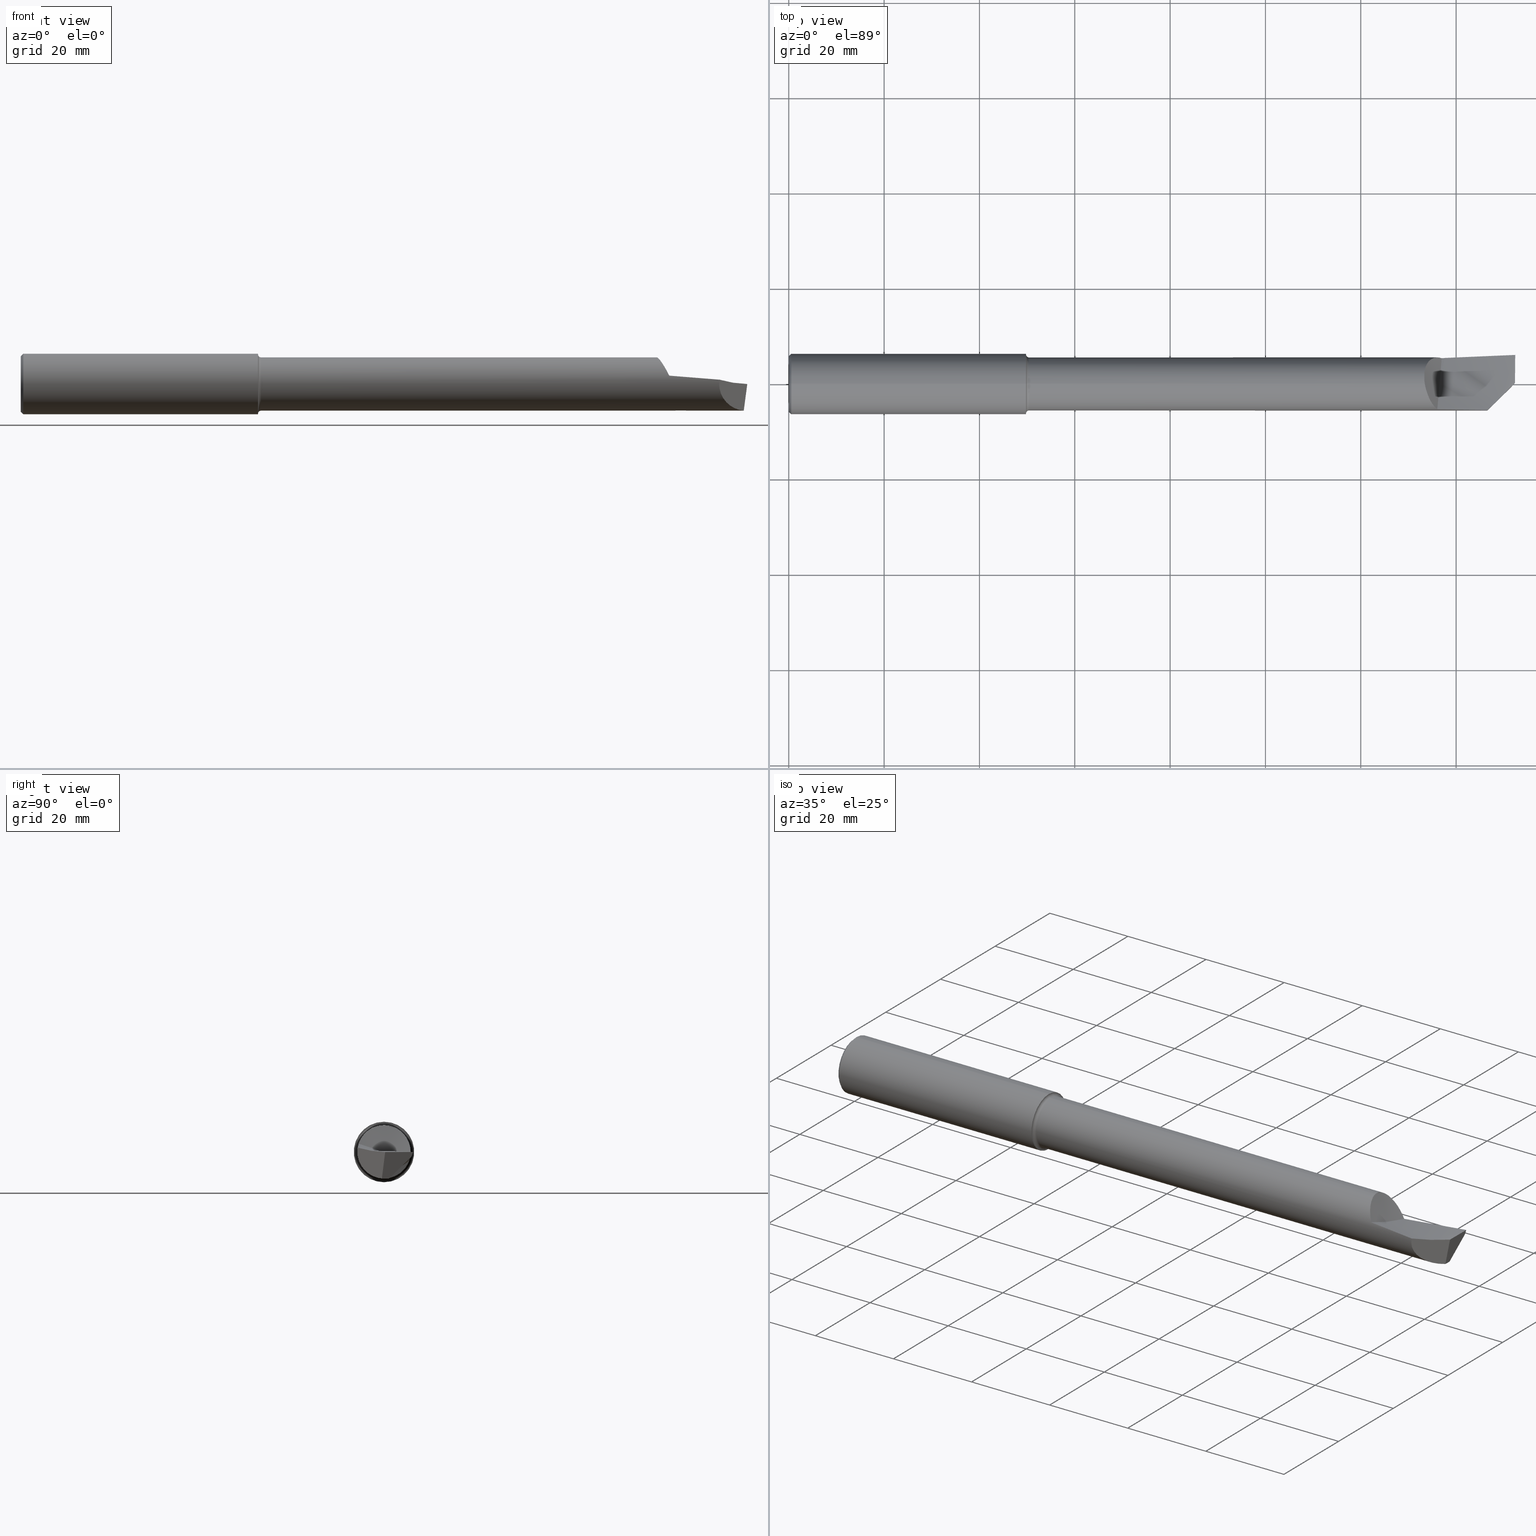
[diagram: canonical four-view strip — front | top / right | iso, engineering-drawing reading convention]
A machine part, canonical four-view strip (front | top / right | iso — engineering-drawing reading convention). The complete STEP part file that produces these views, byte-faithful:
ISO-10303-21;
HEADER;
FILE_DESCRIPTION (( 'STEP AP203' ),
    '1' );
FILE_NAME ('216426-HB4804000.STEP',
    '2024-08-09T22:56:50',
    ( '' ),
    ( '' ),
    'SwSTEP 2.0',
    'SolidWorks 2024',
    '' );
FILE_SCHEMA (( 'CONFIG_CONTROL_DESIGN' ));
ENDSEC;

DATA;
#1 = EDGE_LOOP ( 'NONE', ( #563, #59, #292, #338, #590, #301, #452, #726, #315, #474 ) ) ;
#2 = CARTESIAN_POINT ( 'NONE',  ( 5.377263106783646940, 0.2194462568404662584, -0.02799947325392485031 ) ) ;
#3 = DIRECTION ( 'NONE',  ( 0.000000000000000000, -0.5117430001143385976, -0.8591385812742762251 ) ) ;
#4 = EDGE_CURVE ( 'NONE', #483, #6, #501, .T. ) ;
#5 = VECTOR ( 'NONE', #611, 39.37007874015748143 ) ;
#6 = VERTEX_POINT ( 'NONE', #314 ) ;
#7 = CC_DESIGN_APPROVAL ( #291, ( #535 ) ) ;
#8 = CARTESIAN_POINT ( 'NONE',  ( 5.336129437027316236, 0.2172026737800336060, 0.03511665452093235690 ) ) ;
#9 = CC_DESIGN_DATE_AND_TIME_ASSIGNMENT ( #394, #100, ( #247 ) ) ;
#10 = CARTESIAN_POINT ( 'NONE',  ( 5.771270714435558169, -0.2170814383730695907, 0.03571623039850650716 ) ) ;
#11 = DIRECTION ( 'NONE',  ( -1.000000000000000000, -0.000000000000000000, -0.000000000000000000 ) ) ;
#12 = DIRECTION ( 'NONE',  ( -1.000000000000000000, -0.000000000000000000, -0.000000000000000000 ) ) ;
#13 = ADVANCED_FACE ( 'NONE', ( #553 ), #720, .T. ) ;
#14 = CARTESIAN_POINT ( 'NONE',  ( 0.02000000000000000042, 0.000000000000000000, 0.000000000000000000 ) ) ;
#15 = B_SPLINE_CURVE_WITH_KNOTS ( 'NONE', 3,
 ( #82, #158, #437, #322 ),
 .UNSPECIFIED., .F., .F.,
 ( 4, 4 ),
 ( 0.000000000000000000, 1.000000000000000000 ),
 .UNSPECIFIED. ) ;
#16 = CARTESIAN_POINT ( 'NONE',  ( 1.959525038226270555, 3.000384657911014877E-17, -0.2449999999999999956 ) ) ;
#17 = CARTESIAN_POINT ( 'NONE',  ( 0.000000000000000000, 0.000000000000000000, 0.2498499999999999888 ) ) ;
#18 = AXIS2_PLACEMENT_3D ( 'NONE', #124, #78, #194 ) ;
#19 = ORGANIZATION ( 'UNSPECIFIED', 'UNSPECIFIED', '' ) ;
#20 = CC_DESIGN_PERSON_AND_ORGANIZATION_ASSIGNMENT ( #695, #48, ( #56 ) ) ;
#21 = CARTESIAN_POINT ( 'NONE',  ( 5.250000000000000888, 0.000000000000000000, 0.000000000000000000 ) ) ;
#22 = CARTESIAN_POINT ( 'NONE',  ( 5.415641684470012152, 0.2152245864486061477, -0.05019323217790257891 ) ) ;
#23 =( BOUNDED_CURVE ( )  B_SPLINE_CURVE ( 2, ( #25, #81, #440 ),
 .UNSPECIFIED., .F., .F. ) 
 B_SPLINE_CURVE_WITH_KNOTS ( ( 3, 3 ),
 ( 0.5266614230579070854, 0.5400257304258038182 ),
 .UNSPECIFIED. ) 
 CURVE ( )  GEOMETRIC_REPRESENTATION_ITEM ( )  RATIONAL_B_SPLINE_CURVE ( ( 0.9955652346528230945, 0.9953917806560829140, 0.9952287059344252507 ) ) 
 REPRESENTATION_ITEM ( '' )  );
#24 = APPLICATION_CONTEXT ( 'configuration controlled 3d designs of mechanical parts and assemblies' ) ;
#25 = CARTESIAN_POINT ( 'NONE',  ( 5.392944745247168825, 0.2140968924730454748, -0.05062134562993383935 ) ) ;
#26 = FACE_OUTER_BOUND ( 'NONE', #127, .T. ) ;
#27 = CARTESIAN_POINT ( 'NONE',  ( 5.970822649411938521, -0.01752950339668959273, -0.2193005164395778750 ) ) ;
#28 = EDGE_CURVE ( 'NONE', #471, #6, #89, .T. ) ;
#29 = TOROIDAL_SURFACE ( 'NONE', #40, 0.2449999999999999956, 0.02499999999999993894 ) ;
#30 = CARTESIAN_POINT ( 'NONE',  ( 5.272414265991219651, -0.07762841386096502871, 0.2061942163186600840 ) ) ;
#31 = VERTEX_POINT ( 'NONE', #497 ) ;
#32 = DIRECTION ( 'NONE',  ( 0.000000000000000000, 0.000000000000000000, -1.000000000000000000 ) ) ;
#33 = PERSON_AND_ORGANIZATION ( #429, #19 ) ;
#34 = ORIENTED_EDGE ( 'NONE', *, *, #274, .T. ) ;
#35 = EDGE_CURVE ( 'NONE', #229, #364, #604, .T. ) ;
#36 = CARTESIAN_POINT ( 'NONE',  ( 5.358974358974360364, 0.1342370902800414656, -0.04940682683429966499 ) ) ;
#37 = CARTESIAN_POINT ( 'NONE',  ( 5.410000000000000142, 0.1970817183423179408, -0.08059262188691969364 ) ) ;
#38 = APPROVAL_ROLE ( '' ) ;
#39 = EDGE_LOOP ( 'NONE', ( #707, #649 ) ) ;
#40 = AXIS2_PLACEMENT_3D ( 'NONE', #641, #192, #652 ) ;
#41 = CARTESIAN_POINT ( 'NONE',  ( 5.410000000000000142, 0.2558415763869938964, -0.006761738212205330341 ) ) ;
#42 = CARTESIAN_POINT ( 'NONE',  ( 5.382444373406586990, 0.08525274857312417631, -0.02813121554086442724 ) ) ;
#43 = LOCAL_TIME ( 15, 56, 50.00000000000000000, #578 ) ;
#44 = MECHANICAL_CONTEXT ( 'NONE', #24, 'mechanical' ) ;
#45 = VERTEX_POINT ( 'NONE', #659 ) ;
#46 = DIRECTION ( 'NONE',  ( 1.000000000000000000, 0.000000000000000000, 0.000000000000000000 ) ) ;
#47 = CARTESIAN_POINT ( 'NONE',  ( 5.252747084439405967, 0.001941860339958889929, 0.2199919648580568321 ) ) ;
#48 = PERSON_AND_ORGANIZATION_ROLE ( 'creator' ) ;
#49 = ORIENTED_EDGE ( 'NONE', *, *, #624, .T. ) ;
#50 = CARTESIAN_POINT ( 'NONE',  ( 5.415657971079504307, 0.2155047129925782845, -0.04896678893848467606 ) ) ;
#51 = DIRECTION ( 'NONE',  ( -1.000000000000000000, 0.000000000000000000, 0.000000000000000000 ) ) ;
#52 = CARTESIAN_POINT ( 'NONE',  ( 5.252899803584523575, 0.0009714720314203271947, 0.2199983901436112776 ) ) ;
#53 = ADVANCED_FACE ( 'NONE', ( #26 ), #494, .F. ) ;
#54 = ORIENTED_EDGE ( 'NONE', *, *, #35, .T. ) ;
#55 = CARTESIAN_POINT ( 'NONE',  ( 5.263299120774839857, 0.1481083136068665207, 0.1627128149071685459 ) ) ;
#56 = PRODUCT_DEFINITION_FORMATION_WITH_SPECIFIED_SOURCE ( 'ANY', '', #62, .NOT_KNOWN. ) ;
#57 = EDGE_LOOP ( 'NONE', ( #168, #155 ) ) ;
#58 = CARTESIAN_POINT ( 'NONE',  ( 5.998256711176780165, 0.08645143747528813427, -0.003266647090703651314 ) ) ;
#59 = ORIENTED_EDGE ( 'NONE', *, *, #449, .T. ) ;
#60 = ADVANCED_FACE ( 'NONE', ( #381 ), #186, .T. ) ;
#61 = DIRECTION ( 'NONE',  ( 0.000000000000000000, 0.000000000000000000, 1.000000000000000000 ) ) ;
#62 = PRODUCT ( '216426-HB4804000', '216426-HB4804000', '', ( #44 ) ) ;
#63 = LINE ( 'NONE', #363, #92 ) ;
#64 = APPLICATION_CONTEXT ( 'configuration controlled 3d designs of mechanical parts and assemblies' ) ;
#65 = ORIENTED_EDGE ( 'NONE', *, *, #708, .F. ) ;
#66 = CARTESIAN_POINT ( 'NONE',  ( 5.361872680313166661, 0.2211791025387655485, -0.004520542396876575664 ) ) ;
#67 = SHAPE_DEFINITION_REPRESENTATION ( #110, #461 ) ;
#68 = LINE ( 'NONE', #709, #451 ) ;
#69 = VECTOR ( 'NONE', #132, 39.37007874015748143 ) ;
#70 = CARTESIAN_POINT ( 'NONE',  ( 1.959525038226270555, 3.059780027669661931E-17, -0.2498499999999999888 ) ) ;
#71 = APPROVAL_PERSON_ORGANIZATION ( #341, #291, #38 ) ;
#72 = CARTESIAN_POINT ( 'NONE',  ( 5.996294878558304120, 0.2306141419735413256, -0.02948980456723024682 ) ) ;
#73 = CARTESIAN_POINT ( 'NONE',  ( 0.02000000000000000042, 0.000000000000000000, 0.000000000000000000 ) ) ;
#74 = EDGE_CURVE ( 'NONE', #729, #583, #198, .T. ) ;
#75 = VERTEX_POINT ( 'NONE', #601 ) ;
#76 = ORIENTED_EDGE ( 'NONE', *, *, #424, .T. ) ;
#77 = CARTESIAN_POINT ( 'NONE',  ( 5.338186628435208192, 0.2176984924494593521, 0.03190986540131428295 ) ) ;
#78 = DIRECTION ( 'NONE',  ( -1.000000000000000000, -0.000000000000000000, -0.000000000000000000 ) ) ;
#79 = VERTEX_POINT ( 'NONE', #610 ) ;
#80 = ORIENTED_EDGE ( 'NONE', *, *, #522, .F. ) ;
#81 = CARTESIAN_POINT ( 'NONE',  ( 5.401469481609320944, 0.2142601318164513158, -0.04993094446185701585 ) ) ;
#82 = CARTESIAN_POINT ( 'NONE',  ( 5.250000000000000888, 0.02296396303118268881, 0.2187982093206032042 ) ) ;
#83 = CIRCLE ( 'NONE', #490, 0.2498499999999999888 ) ;
#84 = CARTESIAN_POINT ( 'NONE',  ( 5.970889738018302140, 0.000000000000000000, -0.2200000000000000566 ) ) ;
#85 = CARTESIAN_POINT ( 'NONE',  ( 5.412811562919337405, 0.2143837749633565049, -0.05157965173914655366 ) ) ;
#86 = B_SPLINE_CURVE_WITH_KNOTS ( 'NONE', 3,
 ( #469, #746, #52, #47, #576, #294, #618, #472, #686 ),
 .UNSPECIFIED., .F., .F.,
 ( 4, 2, 1, 1, 1, 4 ),
 ( 0.9276727079954699695, 0.9321931637457538944, 0.9367136194960377082, 0.9457545309966040037, 0.9638363539977363725, 1.000000000000000000 ),
 .UNSPECIFIED. ) ;
#87 = EDGE_CURVE ( 'NONE', #193, #629, #15, .T. ) ;
#88 = CARTESIAN_POINT ( 'NONE',  ( 5.310708596583527452, -0.1601832435777479635, 0.1525009408925927790 ) ) ;
#89 = B_SPLINE_CURVE_WITH_KNOTS ( 'NONE', 3,
 ( #261, #255, #377, #371 ),
 .UNSPECIFIED., .F., .F.,
 ( 4, 4 ),
 ( 0.000000000000000000, 1.000000000000000000 ),
 .UNSPECIFIED. ) ;
#90 = EDGE_CURVE ( 'NONE', #106, #190, #595, .T. ) ;
#91 = ORIENTED_EDGE ( 'NONE', *, *, #319, .F. ) ;
#92 = VECTOR ( 'NONE', #328, 39.37007874015748143 ) ;
#93 = CARTESIAN_POINT ( 'NONE',  ( 1.959525038226270555, 0.000000000000000000, 0.000000000000000000 ) ) ;
#94 =( NAMED_UNIT ( * ) PLANE_ANGLE_UNIT ( ) SI_UNIT ( $, .RADIAN. ) );
#95 = B_SPLINE_CURVE_WITH_KNOTS ( 'NONE', 3,
 ( #644, #182, #72, #416, #640, #758, #241, #475, #700, #129 ),
 .UNSPECIFIED., .F., .F.,
 ( 4, 3, 3, 4 ),
 ( 5.795159497631859898E-18, 0.0002380835754663681247, 0.0005952095077555123043, 0.0009523359941415411242 ),
 .UNSPECIFIED. ) ;
#96 = EDGE_CURVE ( 'NONE', #583, #415, #631, .T. ) ;
#97 = ORIENTED_EDGE ( 'NONE', *, *, #577, .T. ) ;
#98 = CARTESIAN_POINT ( 'NONE',  ( 5.771270714435558169, -0.2170814383730695907, 0.03571623039850650716 ) ) ;
#99 = CARTESIAN_POINT ( 'NONE',  ( 0.02000000000000000042, 3.059780027669661931E-17, -0.2498499999999999888 ) ) ;
#100 = DATE_TIME_ROLE ( 'classification_date' ) ;
#101 = ORIENTED_EDGE ( 'NONE', *, *, #544, .F. ) ;
#102 =( BOUNDED_SURFACE ( )  B_SPLINE_SURFACE ( 3, 2, ( 
 ( #216, #113, #524, #166, #735 ),
 ( #580, #355, #676, #398, #569 ),
 ( #288, #350, #36, #516, #745 ),
 ( #468, #157, #741, #178, #413 ) ),
 .UNSPECIFIED., .F., .F., .F. ) 
 B_SPLINE_SURFACE_WITH_KNOTS ( ( 4, 4 ),
 ( 3, 2, 3 ),
 ( 0.000000000000000000, 1.000000000000000000 ),
 ( 0.000000000000000000, 0.5000000000000000000, 1.000000000000000000 ),
 .UNSPECIFIED. ) 
 GEOMETRIC_REPRESENTATION_ITEM ( )  RATIONAL_B_SPLINE_SURFACE ( (
 ( 1.000000000000000000, 0.9927088740980539727, 1.000000000000000000, 0.9927088740980539727, 1.000000000000000000),
 ( 0.9932804858608129672, 0.9860383527824556626, 0.9932804858608129672, 0.9860383527824556626, 0.9932804858608129672),
 ( 0.9932804858608129672, 0.9860383527824556626, 0.9932804858608129672, 0.9860383527824556626, 0.9932804858608129672),
 ( 1.000000000000000000, 0.9927088740980539727, 1.000000000000000000, 0.9927088740980539727, 1.000000000000000000) ) ) 
 REPRESENTATION_ITEM ( '' )  SURFACE ( )  );
#103 = DIRECTION ( 'NONE',  ( 0.000000000000000000, -0.2212080927902476124, -0.9752266299092232638 ) ) ;
#104 = CARTESIAN_POINT ( 'NONE',  ( 5.303082447116823417, 0.2014617548662042956, 0.08839233498445403514 ) ) ;
#105 = DIRECTION ( 'NONE',  ( 0.000000000000000000, 0.000000000000000000, 1.000000000000000000 ) ) ;
#106 = VERTEX_POINT ( 'NONE', #70 ) ;
#107 = CIRCLE ( 'NONE', #208, 0.2498499999999999888 ) ;
#108 = CARTESIAN_POINT ( 'NONE',  ( 5.995554176883933550, 0.2286766137360623508, -0.03538440047008731965 ) ) ;
#109 = CARTESIAN_POINT ( 'NONE',  ( 5.803332917529139046, 0.2199919291101524454, -0.05201733605973000302 ) ) ;
#110 = PRODUCT_DEFINITION_SHAPE ( 'NONE', 'NONE',  #535 ) ;
#111 = EDGE_LOOP ( 'NONE', ( #639, #402, #757, #426, #210, #460, #754, #498, #533 ) ) ;
#112 = CARTESIAN_POINT ( 'NONE',  ( 5.410000000000001918, 0.2144189151190963594, -0.04923950486296321122 ) ) ;
#113 = CARTESIAN_POINT ( 'NONE',  ( 5.679487179487181514, -0.4174835547069452035, 0.09860675650306138795 ) ) ;
#114 = CARTESIAN_POINT ( 'NONE',  ( 6.000000000000000888, -0.005972189368149022695, -0.2698499999999999788 ) ) ;
#115 = ADVANCED_FACE ( 'NONE', ( #312 ), #628, .T. ) ;
#116 = CALENDAR_DATE ( 2024, 9, 8 ) ;
#117 = ORIENTED_EDGE ( 'NONE', *, *, #149, .F. ) ;
#118 = B_SPLINE_SURFACE_WITH_KNOTS ( 'NONE', 1, 3, ( 
 ( #633, #109, #525, #37 ),
 ( #114, #414, #179, #584 ) ),
 .UNSPECIFIED., .F., .F., .F.,
 ( 2, 2 ),
 ( 4, 4 ),
 ( 0.000000000000000000, 1.000000000000000000 ),
 ( 0.000000000000000000, 1.000000000000000000 ),
 .UNSPECIFIED. ) ;
#119 = CARTESIAN_POINT ( 'NONE',  ( 5.720539435095658654, 0.01518366230970715977, -0.2200000000000000566 ) ) ;
#120 = CARTESIAN_POINT ( 'NONE',  ( 5.258515655996601978, 0.1351780063360196460, 0.1737028663086810920 ) ) ;
#121 = ORIENTED_EDGE ( 'NONE', *, *, #692, .F. ) ;
#122 = FACE_OUTER_BOUND ( 'NONE', #273, .T. ) ;
#123 = AXIS2_PLACEMENT_3D ( 'NONE', #594, #476, #473 ) ;
#124 = CARTESIAN_POINT ( 'NONE',  ( 0.000000000000000000, 0.000000000000000000, 0.000000000000000000 ) ) ;
#125 = AXIS2_PLACEMENT_3D ( 'NONE', #554, #336, #32 ) ;
#126 = B_SPLINE_SURFACE_WITH_KNOTS ( 'NONE', 1, 3, ( 
 ( #222, #227, #528, #399 ),
 ( #682, #750, #637, #346 ) ),
 .UNSPECIFIED., .F., .F., .F.,
 ( 2, 2 ),
 ( 4, 4 ),
 ( 0.000000000000000000, 1.000000000000000000 ),
 ( 0.000000000000000000, 1.000000000000000000 ),
 .UNSPECIFIED. ) ;
#127 = EDGE_LOOP ( 'NONE', ( #423, #367, #418 ) ) ;
#128 = ADVANCED_FACE ( 'NONE', ( #711 ), #710, .T. ) ;
#129 = CARTESIAN_POINT ( 'NONE',  ( 6.000000000000000888, 0.2402499999999999636, 0.000000000000000000 ) ) ;
#130 = CARTESIAN_POINT ( 'NONE',  ( 5.392944745247168825, 0.2140968924730454748, -0.05062134562993383935 ) ) ;
#131 = EDGE_LOOP ( 'NONE', ( #691, #715, #740, #237 ) ) ;
#132 = DIRECTION ( 'NONE',  ( 1.000000000000000000, -0.000000000000000000, -0.000000000000000000 ) ) ;
#133 = CARTESIAN_POINT ( 'NONE',  ( 5.605184837390442709, 0.2091104526378110284, -0.06742930688143945750 ) ) ;
#134 = EDGE_LOOP ( 'NONE', ( #342, #446, #243 ) ) ;
#135 = DIRECTION ( 'NONE',  ( 0.000000000000000000, 0.000000000000000000, 1.000000000000000000 ) ) ;
#136 = CYLINDRICAL_SURFACE ( 'NONE', #18, 0.2200000000000000566 ) ;
#137 = ORIENTED_EDGE ( 'NONE', *, *, #28, .F. ) ;
#138 = APPROVAL_PERSON_ORGANIZATION ( #743, #302, #518 ) ;
#139 = DIMENSIONAL_EXPONENTS ( 1.000000000000000000, 0.000000000000000000, 0.000000000000000000, 0.000000000000000000, 0.000000000000000000, 0.000000000000000000, 0.000000000000000000 ) ;
#140 = FACE_OUTER_BOUND ( 'NONE', #361, .T. ) ;
#141 = CARTESIAN_POINT ( 'NONE',  ( 1.959525038226270555, 0.3402499999999994418, 0.000000000000000000 ) ) ;
#142 = CC_DESIGN_DATE_AND_TIME_ASSIGNMENT ( #159, #751, ( #535 ) ) ;
#143 = CARTESIAN_POINT ( 'NONE',  ( 5.410000000000000142, 0.000000000000000000, -0.2200000000000000566 ) ) ;
#144 = CARTESIAN_POINT ( 'NONE',  ( 5.418486830548875588, 0.2160475044874685668, -0.04882782362294692258 ) ) ;
#145 = CARTESIAN_POINT ( 'NONE',  ( 5.806231657992949380, 0.2339654237526884728, -0.01788766252031758278 ) ) ;
#146 = DIRECTION ( 'NONE',  ( 0.000000000000000000, 0.000000000000000000, 1.000000000000000000 ) ) ;
#147 = DIRECTION ( 'NONE',  ( 0.000000000000000000, 0.000000000000000000, 1.000000000000000000 ) ) ;
#148 = CONICAL_SURFACE ( 'NONE', #661, 0.2498499999999999888, 0.7853981633974506105 ) ;
#149 = EDGE_CURVE ( 'NONE', #669, #193, #86, .T. ) ;
#150 = FACE_OUTER_BOUND ( 'NONE', #331, .T. ) ;
#151 = DIRECTION ( 'NONE',  ( 0.000000000000000000, -0.8460071056678396539, -0.5331716207371927085 ) ) ;
#152 = ORIENTED_EDGE ( 'NONE', *, *, #587, .F. ) ;
#153 = DIRECTION ( 'NONE',  ( 1.000000000000000000, 0.000000000000000000, 0.000000000000000000 ) ) ;
#154 = ADVANCED_FACE ( 'NONE', ( #694 ), #118, .T. ) ;
#155 = ORIENTED_EDGE ( 'NONE', *, *, #544, .T. ) ;
#156 = CIRCLE ( 'NONE', #343, 0.2200000000000000566 ) ;
#157 = CARTESIAN_POINT ( 'NONE',  ( 5.679487179487181514, 0.4274412781259713245, -0.03849778046020245481 ) ) ;
#158 = CARTESIAN_POINT ( 'NONE',  ( 5.250000000000000888, 0.04699247397412212313, 0.2120036020236623353 ) ) ;
#159 = DATE_AND_TIME ( #116, #43 ) ;
#160 = EDGE_LOOP ( 'NONE', ( #224, #121, #91, #614, #412 ) ) ;
#161 = CARTESIAN_POINT ( 'NONE',  ( 5.987387192537218183, 0.1666979988148975245, -0.09749167947808773382 ) ) ;
#162 = CARTESIAN_POINT ( 'NONE',  ( 5.301951721649977856, 0.2006176853541234983, 0.09029816438342547213 ) ) ;
#163 = COORDINATED_UNIVERSAL_TIME_OFFSET ( 8, 0, .BEHIND. ) ;
#164 = DIRECTION ( 'NONE',  ( -1.000000000000000000, -0.000000000000000000, -0.000000000000000000 ) ) ;
#165 = ORIENTED_EDGE ( 'NONE', *, *, #551, .T. ) ;
#166 = CARTESIAN_POINT ( 'NONE',  ( 5.038461538461542766, -0.3817540999168784754, 0.1956517775933941383 ) ) ;
#167 = CARTESIAN_POINT ( 'NONE',  ( 5.302742053925486587, 0.2012100239217667619, 0.08896533452429478128 ) ) ;
#168 = ORIENTED_EDGE ( 'NONE', *, *, #252, .T. ) ;
#169 = B_SPLINE_CURVE_WITH_KNOTS ( 'NONE', 3,
 ( #453, #575, #161, #565 ),
 .UNSPECIFIED., .F., .F.,
 ( 4, 4 ),
 ( 5.707661568023072936E-05, 0.006771847982225326357 ),
 .UNSPECIFIED. ) ;
#170 = ADVANCED_FACE ( 'NONE', ( #393 ), #126, .T. ) ;
#171 = DIRECTION ( 'NONE',  ( -0.008726535498364294818, -0.9999619230641714207, 0.000000000000000000 ) ) ;
#172 = VECTOR ( 'NONE', #489, 39.37007874015748143 ) ;
#173 = CARTESIAN_POINT ( 'NONE',  ( 5.250000000000000888, 0.09504805913230378323, 0.1984083326253766877 ) ) ;
#174 = CARTESIAN_POINT ( 'NONE',  ( 5.250000000000000888, 0.02296396303118268881, 0.2187982093206032042 ) ) ;
#175 = APPLICATION_PROTOCOL_DEFINITION ( 'international standard', 'config_control_design', 1994, #24 ) ;
#176 = MANIFOLD_SOLID_BREP ( 'Front Angle', #500 ) ;
#177 = ORIENTED_EDGE ( 'NONE', *, *, #496, .T. ) ;
#178 = CARTESIAN_POINT ( 'NONE',  ( 5.038461538461542766, 0.4058074895221152611, -0.1396724983455376601 ) ) ;
#179 = CARTESIAN_POINT ( 'NONE',  ( 5.606667235806140681, -0.05861467462045868992, -0.2653019991293242841 ) ) ;
#180 = DIRECTION ( 'NONE',  ( 0.000000000000000000, 0.000000000000000000, 1.000000000000000000 ) ) ;
#181 = ORIENTED_EDGE ( 'NONE', *, *, #90, .T. ) ;
#182 = CARTESIAN_POINT ( 'NONE',  ( 5.995924508398110753, 0.2296459939770670311, -0.03243730289248255433 ) ) ;
#183 = CARTESIAN_POINT ( 'NONE',  ( 5.410000000000000142, 0.2135228625924187884, -0.05299044395307136307 ) ) ;
#184 = VERTEX_POINT ( 'NONE', #581 ) ;
#185 = CARTESIAN_POINT ( 'NONE',  ( 5.341349125908413598, 0.2183424038738390471, 0.02700579478126316491 ) ) ;
#186 = CONICAL_SURFACE ( 'NONE', #358, 0.2498499999999999888, 0.7853981633974506105 ) ;
#187 = FACE_BOUND ( 'NONE', #57, .T. ) ;
#188 = CIRCLE ( 'NONE', #125, 0.2498499999999999888 ) ;
#189 = CC_DESIGN_PERSON_AND_ORGANIZATION_ASSIGNMENT ( #687, #411, ( #62 ) ) ;
#190 = VERTEX_POINT ( 'NONE', #99 ) ;
#191 = APPROVAL_DATE_TIME ( #541, #403 ) ;
#192 = DIRECTION ( 'NONE',  ( -1.000000000000000000, -0.000000000000000000, -0.000000000000000000 ) ) ;
#193 = VERTEX_POINT ( 'NONE', #174 ) ;
#194 = DIRECTION ( 'NONE',  ( 0.000000000000000000, 0.000000000000000000, 1.000000000000000000 ) ) ;
#195 = CARTESIAN_POINT ( 'NONE',  ( 5.249999999999999112, -0.1532211501735197823, 0.2786091727372935756 ) ) ;
#196 = EDGE_CURVE ( 'NONE', #629, #471, #272, .T. ) ;
#197 = DIRECTION ( 'NONE',  ( -1.000000000000000000, -0.000000000000000000, -0.000000000000000000 ) ) ;
#198 = B_SPLINE_CURVE_WITH_KNOTS ( 'NONE', 3,
 ( #204, #145, #605, #672 ),
 .UNSPECIFIED., .F., .F.,
 ( 4, 4 ),
 ( 1.235384741098576477E-19, 0.01483563987091332179 ),
 .UNSPECIFIED. ) ;
#199 = CARTESIAN_POINT ( 'NONE',  ( 5.249999999999998224, 0.1374388247360719684, 0.1827080197078169710 ) ) ;
#200 = CARTESIAN_POINT ( 'NONE',  ( 5.292376002346411035, -0.1261431576479110639, 0.1802597226350352022 ) ) ;
#201 = DIRECTION ( 'NONE',  ( 1.000000000000000000, 0.000000000000000000, 0.000000000000000000 ) ) ;
#202 = CARTESIAN_POINT ( 'NONE',  ( 5.356559098504063421, -0.2088777642239236787, 0.06906576061805669298 ) ) ;
#203 = ADVANCED_FACE ( 'NONE', ( #140 ), #316, .F. ) ;
#204 = CARTESIAN_POINT ( 'NONE',  ( 6.000000000000000888, 0.2402499999999999636, 0.000000000000000000 ) ) ;
#205 = CARTESIAN_POINT ( 'NONE',  ( 5.970822649411938521, -0.01752950339668959273, -0.2193005164395778750 ) ) ;
#206 = DIRECTION ( 'NONE',  ( 1.000000000000000000, 0.000000000000000000, -0.000000000000000000 ) ) ;
#207 = CC_DESIGN_PERSON_AND_ORGANIZATION_ASSIGNMENT ( #508, #634, ( #535 ) ) ;
#208 = AXIS2_PLACEMENT_3D ( 'NONE', #491, #376, #657 ) ;
#209 = CARTESIAN_POINT ( 'NONE',  ( 5.301763750540529507, -0.1449087477148439662, 0.1665523849273789492 ) ) ;
#210 = ORIENTED_EDGE ( 'NONE', *, *, #149, .T. ) ;
#211 = ADVANCED_FACE ( 'NONE', ( #122 ), #427, .T. ) ;
#212 = CARTESIAN_POINT ( 'NONE',  ( 1.984525038226270466, 0.000000000000000000, 0.000000000000000000 ) ) ;
#213 = ORIENTED_EDGE ( 'NONE', *, *, #256, .T. ) ;
#214 = B_SPLINE_CURVE_WITH_KNOTS ( 'NONE', 3,
 ( #488, #589, #58, #712 ),
 .UNSPECIFIED., .F., .F.,
 ( 4, 4 ),
 ( 4.258922872613060102E-16, 0.005858684638792402942 ),
 .UNSPECIFIED. ) ;
#215 = CARTESIAN_POINT ( 'NONE',  ( 5.970847024906386302, -0.004894437837193027323, -0.2200000000000000566 ) ) ;
#216 = CARTESIAN_POINT ( 'NONE',  ( 6.000000000000000888, -0.4232169687476833864, 0.04721891282440422027 ) ) ;
#217 = ORIENTED_EDGE ( 'NONE', *, *, #506, .T. ) ;
#218 = CIRCLE ( 'NONE', #245, 0.2449999999999999956 ) ;
#219 = CC_DESIGN_APPROVAL ( #403, ( #247 ) ) ;
#220 = DESIGN_CONTEXT ( 'detailed design', #64, 'design' ) ;
#221 = FACE_OUTER_BOUND ( 'NONE', #39, .T. ) ;
#222 = CARTESIAN_POINT ( 'NONE',  ( 6.000000000000000888, 0.2402499999999999636, 6.829619984160658046E-17 ) ) ;
#223 = CARTESIAN_POINT ( 'NONE',  ( 5.410000000000000142, 2.694222958124177253E-17, -0.2200000000000000011 ) ) ;
#224 = ORIENTED_EDGE ( 'NONE', *, *, #613, .F. ) ;
#225 = LINE ( 'NONE', #456, #704 ) ;
#226 = CARTESIAN_POINT ( 'NONE',  ( 5.250000000000000888, 0.9517059271875950577, 2.845044789305785304 ) ) ;
#227 = CARTESIAN_POINT ( 'NONE',  ( 5.803332938693778864, 0.2339664105714296394, -0.01786286987400201309 ) ) ;
#228 = EDGE_CURVE ( 'NONE', #364, #190, #321, .T. ) ;
#229 = VERTEX_POINT ( 'NONE', #598 ) ;
#230 = DIRECTION ( 'NONE',  ( -0.000000000000000000, 1.000000000000000000, 1.224646799147353207E-16 ) ) ;
#231 = CARTESIAN_POINT ( 'NONE',  ( 5.260302850203079750, 0.1404692177818710475, 0.1694536208928180965 ) ) ;
#232 = LENGTH_MEASURE_WITH_UNIT ( LENGTH_MEASURE( 0.02539999999999999897 ), #335 );
#233 = EDGE_LOOP ( 'NONE', ( #325, #574, #348, #65 ) ) ;
#234 = PLANE ( 'NONE',  #597 ) ;
#235 = CARTESIAN_POINT ( 'NONE',  ( 5.253785031901272440, 0.1187834096907167958, 0.1856707252788582230 ) ) ;
#236 = COORDINATED_UNIVERSAL_TIME_OFFSET ( 8, 0, .BEHIND. ) ;
#237 = ORIENTED_EDGE ( 'NONE', *, *, #716, .T. ) ;
#238 = EDGE_CURVE ( 'NONE', #703, #729, #95, .T. ) ;
#239 = CARTESIAN_POINT ( 'NONE',  ( 5.273164231607916363, 0.1684140353893864850, 0.1420550892562131851 ) ) ;
#240 = VERTEX_POINT ( 'NONE', #591 ) ;
#241 = CARTESIAN_POINT ( 'NONE',  ( 5.998332384698991326, 0.2359238552322701354, -0.01327365212250781676 ) ) ;
#242 = FACE_OUTER_BOUND ( 'NONE', #586, .T. ) ;
#243 = ORIENTED_EDGE ( 'NONE', *, *, #384, .F. ) ;
#244 = DIRECTION ( 'NONE',  ( 0.1220122463319273931, 0.1220122463319274209, 0.9850005195379716305 ) ) ;
#245 = AXIS2_PLACEMENT_3D ( 'NONE', #362, #647, #61 ) ;
#246 = CYLINDRICAL_SURFACE ( 'NONE', #123, 0.2200000000000000566 ) ;
#247 = SECURITY_CLASSIFICATION ( '', '', #290 ) ;
#248 = EDGE_LOOP ( 'NONE', ( #529, #616, #519, #269 ) ) ;
#249 = CARTESIAN_POINT ( 'NONE',  ( 5.346221521786773678, 0.2191350097120725593, 0.01949428548441049097 ) ) ;
#250 = FACE_OUTER_BOUND ( 'NONE', #1, .T. ) ;
#251 = DIRECTION ( 'NONE',  ( 1.000000000000000000, 0.000000000000000000, 0.000000000000000000 ) ) ;
#252 = EDGE_CURVE ( 'NONE', #439, #386, #218, .T. ) ;
#253 = CARTESIAN_POINT ( 'NONE',  ( 5.342949552235360500, 0.2186394009669333782, 0.02453030179456536231 ) ) ;
#254 = DIRECTION ( 'NONE',  ( 0.000000000000000000, 0.000000000000000000, -1.000000000000000000 ) ) ;
#255 = CARTESIAN_POINT ( 'NONE',  ( 5.380960247964670984, 0.07009182744065016457, -0.02311703390389483956 ) ) ;
#256 = EDGE_CURVE ( 'NONE', #666, #75, #306, .T. ) ;
#257 = DIRECTION ( 'NONE',  ( 0.000000000000000000, 0.000000000000000000, 1.000000000000000000 ) ) ;
#258 = LINE ( 'NONE', #552, #5 ) ;
#259 = CIRCLE ( 'NONE', #556, 0.2298499999999999155 ) ;
#260 = AXIS2_PLACEMENT_3D ( 'NONE', #226, #51, #510 ) ;
#261 = CARTESIAN_POINT ( 'NONE',  ( 5.392944745247168825, 0.2140968924730454748, -0.05062134562993383935 ) ) ;
#262 = EDGE_CURVE ( 'NONE', #31, #334, #480, .T. ) ;
#263 = CARTESIAN_POINT ( 'NONE',  ( 5.970838677816553641, -0.005850919593664028091, -0.2200000000000000011 ) ) ;
#264 = CARTESIAN_POINT ( 'NONE',  ( 5.410000000000000142, 0.2135228625924187884, -0.05299044395307136307 ) ) ;
#265 = CARTESIAN_POINT ( 'NONE',  ( 5.291057892820146158, -0.1233858508182268526, 0.1821426667538900979 ) ) ;
#266 = CARTESIAN_POINT ( 'NONE',  ( 5.358974358974359475, -0.2089406661879938953, 0.06887523512059523512 ) ) ;
#267 = CARTESIAN_POINT ( 'NONE',  ( 1.984525038226270466, 0.000000000000000000, 0.000000000000000000 ) ) ;
#268 = VECTOR ( 'NONE', #244, 39.37007874015748854 ) ;
#269 = ORIENTED_EDGE ( 'NONE', *, *, #727, .F. ) ;
#270 = AXIS2_PLACEMENT_3D ( 'NONE', #41, #46, #103 ) ;
#271 = CARTESIAN_POINT ( 'NONE',  ( 5.289661220195152502, -0.1204269891560956207, 0.1841250165428706675 ) ) ;
#272 = B_SPLINE_CURVE_WITH_KNOTS ( 'NONE', 3,
 ( #356, #742, #235, #120, #231, #55, #289, #521, #755, #337, #697, #410, #239, #677, #566, #279, #511, #463, #736, #162, #167, #104, #340, #284, #517, #458, #406, #626, #8, #77, #185, #253, #303, #487, #249, #654, #66, #2, #588 ),
 .UNSPECIFIED., .F., .F.,
 ( 4, 2, 2, 1, 1, 1, 2, 2, 2, 2, 1, 1, 1, 1, 2, 2, 2, 2, 2, 1, 1, 2, 2, 4 ),
 ( 0.000000000000000000, 0.1250000000000632550, 0.1875000000000961176, 0.2187500000001124656, 0.2343750000001207090, 0.2421875000001248446, 0.2460937500001254830, 0.2500000000001261213, 0.3750000000000630607, 0.4375000000000336398, 0.4687500000000210387, 0.4843750000000147660, 0.4921875000000116018, 0.4960937500000122680, 0.4980468750000126010, 0.5000000000000128786, 0.6249999999999572564, 0.6874999999999319433, 0.7187499999999192868, 0.7343749999999129585, 0.7421874999999098499, 0.7460937499999106270, 0.7499999999999112932, 1.000000000000000000 ),
 .UNSPECIFIED. ) ;
#273 = EDGE_LOOP ( 'NONE', ( #732, #680, #54, #684 ) ) ;
#274 = EDGE_CURVE ( 'NONE', #287, #240, #419, .T. ) ;
#275 = CARTESIAN_POINT ( 'NONE',  ( 5.846075425691751093, -0.1422767271168811631, 0.01425986872581111106 ) ) ;
#276 = APPLICATION_PROTOCOL_DEFINITION ( 'international standard', 'config_control_design', 1994, #64 ) ;
#277 = ORIENTED_EDGE ( 'NONE', *, *, #433, .F. ) ;
#278 = CARTESIAN_POINT ( 'NONE',  ( 5.997941307501974073, 0.009589154693346030670, -0.0003725554249012499267 ) ) ;
#279 = CARTESIAN_POINT ( 'NONE',  ( 5.289897884054999722, 0.1899916407718357791, 0.1111104138017025428 ) ) ;
#280 = PERSON_AND_ORGANIZATION ( #429, #19 ) ;
#281 = ORIENTED_EDGE ( 'NONE', *, *, #228, .F. ) ;
#282 = AXIS2_PLACEMENT_3D ( 'NONE', #267, #725, #693 ) ;
#283 = PLANE ( 'NONE',  #270 ) ;
#284 = CARTESIAN_POINT ( 'NONE',  ( 5.303450587856115561, 0.2017322369564578388, 0.08777317349638595612 ) ) ;
#285 = ADVANCED_FACE ( 'NONE', ( #585 ), #300, .F. ) ;
#286 = APPROVAL_STATUS ( 'not_yet_approved' ) ;
#287 = VERTEX_POINT ( 'NONE', #739 ) ;
#288 = CARTESIAN_POINT ( 'NONE',  ( 6.000000000000000000, 0.1421602319866792363, -0.01584611580735217559 ) ) ;
#289 = CARTESIAN_POINT ( 'NONE',  ( 5.264876125876235768, 0.1518534575458663771, 0.1592507360763968649 ) ) ;
#290 = SECURITY_CLASSIFICATION_LEVEL ( 'unclassified' ) ;
#291 = APPROVAL ( #347, 'UNSPECIFIED' ) ;
#292 = ORIENTED_EDGE ( 'NONE', *, *, #319, .T. ) ;
#293 = CARTESIAN_POINT ( 'NONE',  ( 5.253048836201133831, -1.183062825525345383E-06, 0.2200124226379089887 ) ) ;
#294 = CARTESIAN_POINT ( 'NONE',  ( 5.252011678586734789, 0.006780167464581198303, 0.2199103442296861943 ) ) ;
#295 = VERTEX_POINT ( 'NONE', #223 ) ;
#296 = ADVANCED_FACE ( 'NONE', ( #759 ), #136, .T. ) ;
#297 = AXIS2_PLACEMENT_3D ( 'NONE', #425, #369, #360 ) ;
#298 = AXIS2_PLACEMENT_3D ( 'NONE', #409, #625, #730 ) ;
#299 = CARTESIAN_POINT ( 'NONE',  ( 5.395776765633406136, 0.2486773137347068063, -0.05698163954414497273 ) ) ;
#300 = PLANE ( 'NONE',  #466 ) ;
#301 = ORIENTED_EDGE ( 'NONE', *, *, #506, .F. ) ;
#302 = APPROVAL ( #286, 'UNSPECIFIED' ) ;
#303 = CARTESIAN_POINT ( 'NONE',  ( 5.344850277066564459, 0.2189397232252884296, 0.02160200614133551966 ) ) ;
#304 = DIRECTION ( 'NONE',  ( 0.000000000000000000, 0.000000000000000000, 1.000000000000000000 ) ) ;
#305 = ORIENTED_EDGE ( 'NONE', *, *, #196, .F. ) ;
#306 = LINE ( 'NONE', #534, #268 ) ;
#307 = FACE_OUTER_BOUND ( 'NONE', #579, .T. ) ;
#308 = ORIENTED_EDGE ( 'NONE', *, *, #606, .T. ) ;
#309 = AXIS2_PLACEMENT_3D ( 'NONE', #531, #602, #545 ) ;
#310 = CARTESIAN_POINT ( 'NONE',  ( 5.410000000000000142, 0.000000000000000000, 0.000000000000000000 ) ) ;
#311 = CIRCLE ( 'NONE', #479, 0.02499999999999993894 ) ;
#312 = FACE_OUTER_BOUND ( 'NONE', #134, .T. ) ;
#313 = CARTESIAN_POINT ( 'NONE',  ( 5.410000000000000142, 0.2159144635021685021, -0.04897531016107510571 ) ) ;
#314 = CARTESIAN_POINT ( 'NONE',  ( 5.356559098504063421, -0.2088777642239236787, 0.06906576061805669298 ) ) ;
#315 = ORIENTED_EDGE ( 'NONE', *, *, #442, .T. ) ;
#316 = PLANE ( 'NONE',  #309 ) ;
#317 = DIRECTION ( 'NONE',  ( 1.000000000000000000, 0.000000000000000000, 0.000000000000000000 ) ) ;
#318 = CARTESIAN_POINT ( 'NONE',  ( 5.564429700643780841, -0.2143015012764733496, 0.05261254719292928622 ) ) ;
#319 = EDGE_CURVE ( 'NONE', #79, #31, #721, .T. ) ;
#320 = CARTESIAN_POINT ( 'NONE',  ( 5.291331261531611929, -0.1239598244847264774, 0.1817528458976670203 ) ) ;
#321 = CIRCLE ( 'NONE', #607, 0.2498499999999999888 ) ;
#322 = CARTESIAN_POINT ( 'NONE',  ( 5.250000000000000888, 0.09504805913230378323, 0.1984083326253766877 ) ) ;
#323 =( BOUNDED_CURVE ( )  B_SPLINE_CURVE ( 3, ( #378, #327, #722, #205 ),
 .UNSPECIFIED., .F., .T. ) 
 B_SPLINE_CURVE_WITH_KNOTS ( ( 4, 4 ),
 ( 6.120117067556848589, 7.774217519258910691 ),
 .UNSPECIFIED. ) 
 CURVE ( )  GEOMETRIC_REPRESENTATION_ITEM ( )  RATIONAL_B_SPLINE_CURVE ( ( 1.000000000000000000, 0.7846997011302683234, 0.7846997011302683234, 1.000000000000000000 ) ) 
 REPRESENTATION_ITEM ( '' )  );
#324 = CARTESIAN_POINT ( 'NONE',  ( 5.343568907379043331, -0.2004185357093110631, 0.09466616758537328702 ) ) ;
#325 = ORIENTED_EDGE ( 'NONE', *, *, #373, .T. ) ;
#326 = B_SPLINE_CURVE_WITH_KNOTS ( 'NONE', 3,
 ( #278, #632, #275, #98 ),
 .UNSPECIFIED., .F., .F.,
 ( 4, 4 ),
 ( 7.367693421365798835E-05, 0.008267352743947888050 ),
 .UNSPECIFIED. ) ;
#327 = CARTESIAN_POINT ( 'NONE',  ( 5.748939529771278423, -0.2394126230373500863, -0.1000115783150170440 ) ) ;
#328 = DIRECTION ( 'NONE',  ( -1.000000000000000000, -0.000000000000000000, -0.000000000000000000 ) ) ;
#329 = ADVANCED_FACE ( 'NONE', ( #592 ), #29, .F. ) ;
#330 = CIRCLE ( 'NONE', #572, 0.2200000000000000011 ) ;
#331 = EDGE_LOOP ( 'NONE', ( #101, #49, #177, #509 ) ) ;
#332 = CARTESIAN_POINT ( 'NONE',  ( 6.000000000000000888, 0.2402499999999999636, 0.000000000000000000 ) ) ;
#333 = DATE_AND_TIME ( #683, #390 ) ;
#334 = VERTEX_POINT ( 'NONE', #428 ) ;
#335 =( LENGTH_UNIT ( ) NAMED_UNIT ( * ) SI_UNIT ( $, .METRE. ) );
#336 = DIRECTION ( 'NONE',  ( 1.000000000000000000, 0.000000000000000000, 0.000000000000000000 ) ) ;
#337 = CARTESIAN_POINT ( 'NONE',  ( 5.268323433205456929, 0.1590487263599245915, 0.1519989609637832917 ) ) ;
#338 = ORIENTED_EDGE ( 'NONE', *, *, #262, .T. ) ;
#339 = EDGE_CURVE ( 'NONE', #439, #383, #441, .T. ) ;
#340 = CARTESIAN_POINT ( 'NONE',  ( 5.303309749101932979, 0.2016291004824135591, 0.08800993919113511699 ) ) ;
#341 = PERSON_AND_ORGANIZATION ( #429, #19 ) ;
#342 = ORIENTED_EDGE ( 'NONE', *, *, #748, .T. ) ;
#343 = AXIS2_PLACEMENT_3D ( 'NONE', #21, #388, #612 ) ;
#344 =( GEOMETRIC_REPRESENTATION_CONTEXT ( 3 ) GLOBAL_UNCERTAINTY_ASSIGNED_CONTEXT ( ( #662 ) ) GLOBAL_UNIT_ASSIGNED_CONTEXT ( ( #352, #94, #464 ) ) REPRESENTATION_CONTEXT ( 'NONE', 'WORKASPACE' ) );
#345 = CARTESIAN_POINT ( 'NONE',  ( 1.984525038226270466, 3.000384657911014877E-17, -0.2449999999999999956 ) ) ;
#346 = CARTESIAN_POINT ( 'NONE',  ( 5.410000000000000142, 0.1970817183423179408, -0.08059262188691969364 ) ) ;
#347 = APPROVAL_STATUS ( 'not_yet_approved' ) ;
#348 = ORIENTED_EDGE ( 'NONE', *, *, #449, .F. ) ;
#349 = B_SPLINE_CURVE_WITH_KNOTS ( 'NONE', 3,
 ( #481, #484, #133, #366 ),
 .UNSPECIFIED., .F., .F.,
 ( 4, 4 ),
 ( 0.007535277762628577423, 1.000000000000000000 ),
 .UNSPECIFIED. ) ;
#350 = CARTESIAN_POINT ( 'NONE',  ( 5.679487179487179738, 0.1402361651789809094, -0.03310749311051140731 ) ) ;
#351 = CARTESIAN_POINT ( 'NONE',  ( 5.249999999999999112, 0.2878387765271836485, 0.1549375342437022685 ) ) ;
#352 =( CONVERSION_BASED_UNIT ( 'INCH', #232 ) LENGTH_UNIT ( ) NAMED_UNIT ( #139 ) );
#353 = ADVANCED_FACE ( 'NONE', ( #242 ), #148, .T. ) ;
#354 = ORIENTED_EDGE ( 'NONE', *, *, #87, .F. ) ;
#355 = CARTESIAN_POINT ( 'NONE',  ( 5.679487179487179738, -0.1433107432254709379, 0.01290318863713321371 ) ) ;
#356 = CARTESIAN_POINT ( 'NONE',  ( 5.250000000000000888, 0.09504805913230378323, 0.1984083326253766877 ) ) ;
#357 = EDGE_LOOP ( 'NONE', ( #217, #213, #744 ) ) ;
#358 = AXIS2_PLACEMENT_3D ( 'NONE', #656, #201, #448 ) ;
#359 = AXIS2_PLACEMENT_3D ( 'NONE', #627, #180, #571 ) ;
#360 = DIRECTION ( 'NONE',  ( 0.000000000000000000, 0.000000000000000000, -1.000000000000000000 ) ) ;
#361 = EDGE_LOOP ( 'NONE', ( #568, #391, #537, #165, #375, #646 ) ) ;
#362 = CARTESIAN_POINT ( 'NONE',  ( 1.959525038226270555, 0.000000000000000000, 0.000000000000000000 ) ) ;
#363 = CARTESIAN_POINT ( 'NONE',  ( 0.000000000000000000, 2.694222958124177561E-17, -0.2200000000000000566 ) ) ;
#364 = VERTEX_POINT ( 'NONE', #417 ) ;
#365 = EDGE_CURVE ( 'NONE', #240, #287, #259, .T. ) ;
#366 = CARTESIAN_POINT ( 'NONE',  ( 5.410000000000000142, 0.1970817183423179408, -0.08059262188691969364 ) ) ;
#367 = ORIENTED_EDGE ( 'NONE', *, *, #737, .T. ) ;
#368 = DIRECTION ( 'NONE',  ( -1.000000000000000000, -0.000000000000000000, -0.000000000000000000 ) ) ;
#369 = DIRECTION ( 'NONE',  ( 0.000000000000000000, -1.000000000000000000, 0.000000000000000000 ) ) ;
#370 = LOCAL_TIME ( 15, 56, 50.00000000000000000, #674 ) ;
#371 = CARTESIAN_POINT ( 'NONE',  ( 5.356559098504063421, -0.2088777642239236787, 0.06906576061805669298 ) ) ;
#372 = CARTESIAN_POINT ( 'NONE',  ( 1.959525038226270555, 0.000000000000000000, 0.2449999999999999956 ) ) ;
#373 = EDGE_CURVE ( 'NONE', #415, #478, #536, .T. ) ;
#374 = ORIENTED_EDGE ( 'NONE', *, *, #727, .T. ) ;
#375 = ORIENTED_EDGE ( 'NONE', *, *, #737, .F. ) ;
#376 = DIRECTION ( 'NONE',  ( -1.000000000000000000, -0.000000000000000000, -0.000000000000000000 ) ) ;
#377 = CARTESIAN_POINT ( 'NONE',  ( 5.368992473848769542, -0.07181561011661122262, 0.01702505518877546822 ) ) ;
#378 = CARTESIAN_POINT ( 'NONE',  ( 5.771270714435558169, -0.2170814383730695907, 0.03571623039850650716 ) ) ;
#379 = VECTOR ( 'NONE', #492, 39.37007874015748143 ) ;
#380 = CIRCLE ( 'NONE', #298, 0.2200000000000000566 ) ;
#381 = FACE_OUTER_BOUND ( 'NONE', #248, .T. ) ;
#382 = CARTESIAN_POINT ( 'NONE',  ( 5.286194494552781009, -0.1128910208792994335, 0.1889741111404006357 ) ) ;
#383 = VERTEX_POINT ( 'NONE', #546 ) ;
#384 = EDGE_CURVE ( 'NONE', #45, #415, #330, .T. ) ;
#385 = DIRECTION ( 'NONE',  ( 0.000000000000000000, 0.000000000000000000, -1.000000000000000000 ) ) ;
#386 = VERTEX_POINT ( 'NONE', #16 ) ;
#387 = B_SPLINE_CURVE_WITH_KNOTS ( 'NONE', 3,
 ( #202, #324, #728, #88, #209, #495, #200, #320, #615, #265, #436, #555, #271, #382, #438, #668, #30, #561, #660, #493 ),
 .UNSPECIFIED., .F., .F.,
 ( 4, 2, 2, 1, 1, 2, 2, 1, 1, 2, 2, 4 ),
 ( 0.000000000000000000, 0.2319181769986998209, 0.4638363539973996419, 0.4928261261222369738, 0.4964498476378415015, 0.4982617083956438209, 0.5000735691534462513, 0.5073210121846650766, 0.5218158982471060581, 0.5797954424968704279, 0.6957545309964027203, 0.9276727079954699695 ),
 .UNSPECIFIED. ) ;
#388 = DIRECTION ( 'NONE',  ( 1.000000000000000000, -0.000000000000000000, -0.000000000000000000 ) ) ;
#389 = PRODUCT_RELATED_PRODUCT_CATEGORY ( 'detail', '', ( #62 ) ) ;
#390 = LOCAL_TIME ( 15, 56, 50.00000000000000000, #236 ) ;
#391 = ORIENTED_EDGE ( 'NONE', *, *, #433, .T. ) ;
#392 = CARTESIAN_POINT ( 'NONE',  ( 5.845852163533738377, 0.02853572066375641147, -0.2199999999999999734 ) ) ;
#393 = FACE_OUTER_BOUND ( 'NONE', #723, .T. ) ;
#394 = DATE_AND_TIME ( #567, #370 ) ;
#395 = DIRECTION ( 'NONE',  ( 0.000000000000000000, 0.000000000000000000, -1.000000000000000000 ) ) ;
#396 = ADVANCED_FACE ( 'NONE', ( #250 ), #246, .T. ) ;
#397 = ORIENTED_EDGE ( 'NONE', *, *, #35, .F. ) ;
#398 = CARTESIAN_POINT ( 'NONE',  ( 5.038461538461540101, -0.1360584583238938217, 0.04682475114047649628 ) ) ;
#399 = CARTESIAN_POINT ( 'NONE',  ( 5.410000000000000142, 0.2159144635021685021, -0.04897531016107510571 ) ) ;
#400 = CALENDAR_DATE ( 2024, 9, 8 ) ;
#401 =( BOUNDED_CURVE ( )  B_SPLINE_CURVE ( 3, ( #27, #609, #263, #84 ),
 .UNSPECIFIED., .F., .F. ) 
 B_SPLINE_CURVE_WITH_KNOTS ( ( 4, 4 ),
 ( 6.274373815428427648, 6.354137930144000634 ),
 .UNSPECIFIED. ) 
 CURVE ( )  GEOMETRIC_REPRESENTATION_ITEM ( )  RATIONAL_B_SPLINE_CURVE ( ( 1.000000000000000000, 0.9994698774393541152, 0.9994698774393541152, 1.000000000000000000 ) ) 
 REPRESENTATION_ITEM ( '' )  );
#402 = ORIENTED_EDGE ( 'NONE', *, *, #477, .T. ) ;
#403 = APPROVAL ( #512, 'UNSPECIFIED' ) ;
#404 = LINE ( 'NONE', #215, #753 ) ;
#405 = DIRECTION ( 'NONE',  ( 0.000000000000000000, 0.000000000000000000, 1.000000000000000000 ) ) ;
#406 = CARTESIAN_POINT ( 'NONE',  ( 5.326303742156078158, 0.2141922380105743262, 0.05056821540889350208 ) ) ;
#407 = VERTEX_POINT ( 'NONE', #698 ) ;
#408 = AXIS2_PLACEMENT_3D ( 'NONE', #421, #651, #135 ) ;
#409 = CARTESIAN_POINT ( 'NONE',  ( 1.984525038226270466, 0.000000000000000000, 0.000000000000000000 ) ) ;
#410 = CARTESIAN_POINT ( 'NONE',  ( 5.268791352084498669, 0.1599650663951595886, 0.1510341587815036413 ) ) ;
#411 = PERSON_AND_ORGANIZATION_ROLE ( 'design_owner' ) ;
#412 = ORIENTED_EDGE ( 'NONE', *, *, #424, .F. ) ;
#413 = CARTESIAN_POINT ( 'NONE',  ( 4.717948717948720727, 0.3831985670997781201, -0.1862012283307211968 ) ) ;
#414 = CARTESIAN_POINT ( 'NONE',  ( 5.803332785482715472, -0.03231946398605128196, -0.2694059603549082138 ) ) ;
#415 = VERTEX_POINT ( 'NONE', #183 ) ;
#416 = CARTESIAN_POINT ( 'NONE',  ( 5.996665286806011075, 0.2315810568625031041, -0.02654190685165348437 ) ) ;
#417 = CARTESIAN_POINT ( 'NONE',  ( 0.02000000000000000042, 0.000000000000000000, 0.2498499999999999888 ) ) ;
#418 = ORIENTED_EDGE ( 'NONE', *, *, #262, .F. ) ;
#419 = CIRCLE ( 'NONE', #702, 0.2298499999999999155 ) ;
#420 = APPROVAL_PERSON_ORGANIZATION ( #280, #403, #738 ) ;
#421 = CARTESIAN_POINT ( 'NONE',  ( 0.000000000000000000, 0.000000000000000000, 0.000000000000000000 ) ) ;
#422 = DIRECTION ( 'NONE',  ( 0.000000000000000000, 0.000000000000000000, -1.000000000000000000 ) ) ;
#423 = ORIENTED_EDGE ( 'NONE', *, *, #692, .T. ) ;
#424 = EDGE_CURVE ( 'NONE', #703, #478, #349, .T. ) ;
#425 = CARTESIAN_POINT ( 'NONE',  ( 1.984525038226270466, 0.000000000000000000, 0.2449999999999999956 ) ) ;
#426 = ORIENTED_EDGE ( 'NONE', *, *, #442, .F. ) ;
#427 = CYLINDRICAL_SURFACE ( 'NONE', #408, 0.2498499999999999888 ) ;
#428 = CARTESIAN_POINT ( 'NONE',  ( 5.970889738018302140, 0.000000000000000000, -0.2200000000000000566 ) ) ;
#429 = PERSON ( 'UNSPECIFIED', 'UNSPECIFIED', 'UNSPECIFIED', ('UNSPECIFIED'), ('UNSPECIFIED'), ('UNSPECIFIED') ) ;
#430 = CARTESIAN_POINT ( 'NONE',  ( 0.000000000000000000, 0.000000000000000000, 0.000000000000000000 ) ) ;
#431 = VECTOR ( 'NONE', #3, 39.37007874015748143 ) ;
#432 = AXIS2_PLACEMENT_3D ( 'NONE', #540, #251, #485 ) ;
#433 = EDGE_CURVE ( 'NONE', #729, #75, #214, .T. ) ;
#434 = CARTESIAN_POINT ( 'NONE',  ( 5.595439364795532278, 2.134256245050205639E-18, -0.2200000000000000566 ) ) ;
#435 = DIRECTION ( 'NONE',  ( 0.000000000000000000, -0.000000000000000000, 1.000000000000000000 ) ) ;
#436 = CARTESIAN_POINT ( 'NONE',  ( 5.291026367974281719, -0.1233195885780081907, 0.1821875986796213653 ) ) ;
#437 = CARTESIAN_POINT ( 'NONE',  ( 5.250000000000000888, 0.07102077957284554099, 0.2052070382287639605 ) ) ;
#438 = CARTESIAN_POINT ( 'NONE',  ( 5.283226719027450891, -0.1059187799789718248, 0.1929277633858645646 ) ) ;
#439 = VERTEX_POINT ( 'NONE', #372 ) ;
#440 = CARTESIAN_POINT ( 'NONE',  ( 5.410000000000001918, 0.2144189151190963594, -0.04923950486296321122 ) ) ;
#441 = CIRCLE ( 'NONE', #297, 0.02499999999999993894 ) ;
#442 = EDGE_CURVE ( 'NONE', #669, #383, #68, .T. ) ;
#443 = CARTESIAN_POINT ( 'NONE',  ( 5.410000000000000142, 0.1970817183423179408, -0.08059262188691969364 ) ) ;
#444 = EDGE_LOOP ( 'NONE', ( #527, #137, #305, #354, #117 ) ) ;
#445 = CARTESIAN_POINT ( 'NONE',  ( 1.959525038226270555, 0.000000000000000000, 0.000000000000000000 ) ) ;
#446 = ORIENTED_EDGE ( 'NONE', *, *, #96, .T. ) ;
#447 = FACE_OUTER_BOUND ( 'NONE', #233, .T. ) ;
#448 = DIRECTION ( 'NONE',  ( 0.000000000000000000, 0.000000000000000000, -1.000000000000000000 ) ) ;
#449 = EDGE_CURVE ( 'NONE', #295, #79, #596, .T. ) ;
#450 = PERSON_AND_ORGANIZATION_ROLE ( 'classification_officer' ) ;
#451 = VECTOR ( 'NONE', #197, 39.37007874015748143 ) ;
#452 = ORIENTED_EDGE ( 'NONE', *, *, #4, .T. ) ;
#453 = CARTESIAN_POINT ( 'NONE',  ( 5.971247793545430227, 0.04102909952508763253, -0.2200000000000000566 ) ) ;
#454 = DATE_AND_TIME ( #526, #690 ) ;
#455 = EDGE_LOOP ( 'NONE', ( #80, #181, #281, #397 ) ) ;
#456 = CARTESIAN_POINT ( 'NONE',  ( 0.02000000000000000042, 0.000000000000000000, -0.2498499999999999888 ) ) ;
#457 = CARTESIAN_POINT ( 'NONE',  ( 5.410000000000000142, 0.000000000000000000, 0.000000000000000000 ) ) ;
#458 = CARTESIAN_POINT ( 'NONE',  ( 5.315494800936125586, 0.2096186112504940802, 0.06783711927764354832 ) ) ;
#459 = COORDINATED_UNIVERSAL_TIME_OFFSET ( 8, 0, .BEHIND. ) ;
#460 = ORIENTED_EDGE ( 'NONE', *, *, #530, .F. ) ;
#461 = ADVANCED_BREP_SHAPE_REPRESENTATION ( '216426-HB4804000', ( #176, #359 ), #344 ) ;
#462 = FACE_OUTER_BOUND ( 'NONE', #357, .T. ) ;
#463 = CARTESIAN_POINT ( 'NONE',  ( 5.297319446116645736, 0.1969271478189842384, 0.09817724510292789863 ) ) ;
#464 =( NAMED_UNIT ( * ) SI_UNIT ( $, .STERADIAN. ) SOLID_ANGLE_UNIT ( ) );
#465 = ORIENTED_EDGE ( 'NONE', *, *, #96, .F. ) ;
#466 = AXIS2_PLACEMENT_3D ( 'NONE', #756, #688, #395 ) ;
#467 = ADVANCED_FACE ( 'NONE', ( #187, #307 ), #539, .T. ) ;
#468 = CARTESIAN_POINT ( 'NONE',  ( 6.000000000000000888, 0.4258375057284731757, 0.01320825401576949422 ) ) ;
#469 = CARTESIAN_POINT ( 'NONE',  ( 5.253048836201133831, -1.183062825525345383E-06, 0.2200124226379089887 ) ) ;
#470 = APPROVAL_DATE_TIME ( #333, #302 ) ;
#471 = VERTEX_POINT ( 'NONE', #130 ) ;
#472 = CARTESIAN_POINT ( 'NONE',  ( 5.250393707398775867, 0.01920438848276740523, 0.2191927973443306421 ) ) ;
#473 = DIRECTION ( 'NONE',  ( 0.000000000000000000, 0.000000000000000000, 1.000000000000000000 ) ) ;
#474 = ORIENTED_EDGE ( 'NONE', *, *, #496, .F. ) ;
#475 = CARTESIAN_POINT ( 'NONE',  ( 5.998888170757104454, 0.2373686809149650745, -0.008849996828385364375 ) ) ;
#476 = DIRECTION ( 'NONE',  ( -1.000000000000000000, -0.000000000000000000, -0.000000000000000000 ) ) ;
#477 = EDGE_CURVE ( 'NONE', #295, #184, #63, .T. ) ;
#478 = VERTEX_POINT ( 'NONE', #443 ) ;
#479 = AXIS2_PLACEMENT_3D ( 'NONE', #345, #230, #621 ) ;
#480 = LINE ( 'NONE', #705, #69 ) ;
#481 = CARTESIAN_POINT ( 'NONE',  ( 5.995554176883933550, 0.2286766137360623508, -0.03538440047008731965 ) ) ;
#482 = EDGE_CURVE ( 'NONE', #478, #79, #719, .T. ) ;
#483 = VERTEX_POINT ( 'NONE', #499 ) ;
#484 = CARTESIAN_POINT ( 'NONE',  ( 5.800369049489881412, 0.2198292400659616064, -0.05224798050528008803 ) ) ;
#485 = DIRECTION ( 'NONE',  ( 0.000000000000000000, 0.000000000000000000, -1.000000000000000000 ) ) ;
#486 = EDGE_CURVE ( 'NONE', #6, #669, #387, .T. ) ;
#487 = CARTESIAN_POINT ( 'NONE',  ( 5.345672065019172692, 0.2190582683874626457, 0.02033850287371858495 ) ) ;
#488 = CARTESIAN_POINT ( 'NONE',  ( 6.000000000000000888, 0.2402499999999999636, 0.000000000000000000 ) ) ;
#489 = DIRECTION ( 'NONE',  ( -1.000000000000000000, -0.000000000000000000, -0.000000000000000000 ) ) ;
#490 = AXIS2_PLACEMENT_3D ( 'NONE', #445, #153, #385 ) ;
#491 = CARTESIAN_POINT ( 'NONE',  ( 0.02000000000000000042, 0.000000000000000000, 0.000000000000000000 ) ) ;
#492 = DIRECTION ( 'NONE',  ( -1.000000000000000000, -0.000000000000000000, -0.000000000000000000 ) ) ;
#493 = CARTESIAN_POINT ( 'NONE',  ( 5.253048836201133831, -1.183062825525345383E-06, 0.2200124226379089887 ) ) ;
#494 = PLANE ( 'NONE',  #724 ) ;
#495 = CARTESIAN_POINT ( 'NONE',  ( 5.293395547304614368, -0.1282223768002896391, 0.1787856457334581206 ) ) ;
#496 = EDGE_CURVE ( 'NONE', #184, #383, #734, .T. ) ;
#497 = CARTESIAN_POINT ( 'NONE',  ( 5.595439364795532278, 2.134256245050205639E-18, -0.2200000000000000566 ) ) ;
#498 = ORIENTED_EDGE ( 'NONE', *, *, #587, .T. ) ;
#499 = CARTESIAN_POINT ( 'NONE',  ( 5.771270714435558169, -0.2170814383730695907, 0.03571623039850650716 ) ) ;
#500 = CLOSED_SHELL ( 'NONE', ( #600, #60, #13, #296, #115, #679, #396, #211, #285, #353, #467, #329, #658, #128, #154, #170, #638, #53, #667, #203 ) ) ;
#501 =( BOUNDED_CURVE ( )  B_SPLINE_CURVE ( 2, ( #10, #318, #266, #547, #718 ),
 .UNSPECIFIED., .F., .F. ) 
 B_SPLINE_CURVE_WITH_KNOTS ( ( 3, 2, 3 ),
 ( 0.1786485734947638737, 0.5000000000000000000, 0.5019619316750385529 ),
 .UNSPECIFIED. ) 
 CURVE ( )  GEOMETRIC_REPRESENTATION_ITEM ( )  RATIONAL_B_SPLINE_CURVE ( ( 0.9929648280793842430, 0.9916323561610862480, 0.9963010501997406898, 0.9962725466427000409, 0.9962442667737849700 ) ) 
 REPRESENTATION_ITEM ( '' )  );
#502 = ORIENTED_EDGE ( 'NONE', *, *, #74, .F. ) ;
#503 = DIRECTION ( 'NONE',  ( -1.000000000000000000, -0.000000000000000000, -0.000000000000000000 ) ) ;
#504 = ORIENTED_EDGE ( 'NONE', *, *, #650, .F. ) ;
#505 = B_SPLINE_CURVE_WITH_KNOTS ( 'NONE', 3,
 ( #636, #119, #392, #617 ),
 .UNSPECIFIED., .F., .F.,
 ( 4, 4 ),
 ( 0.000000000000000000, 0.009602408570643407304 ),
 .UNSPECIFIED. ) ;
#506 = EDGE_CURVE ( 'NONE', #483, #666, #323, .T. ) ;
#507 = DIRECTION ( 'NONE',  ( -0.7071067811865476838, 0.7071067811865474617, 0.000000000000000000 ) ) ;
#508 = PERSON_AND_ORGANIZATION ( #429, #19 ) ;
#509 = ORIENTED_EDGE ( 'NONE', *, *, #339, .F. ) ;
#510 = DIRECTION ( 'NONE',  ( 0.000000000000000000, 0.2789911060392295528, 0.9602936856769429541 ) ) ;
#511 = CARTESIAN_POINT ( 'NONE',  ( 5.294797823663016878, 0.1946680960171449093, 0.1025422805366140583 ) ) ;
#512 = APPROVAL_STATUS ( 'not_yet_approved' ) ;
#513 = AXIS2_PLACEMENT_3D ( 'NONE', #93, #664, #146 ) ;
#514 = CARTESIAN_POINT ( 'NONE',  ( 0.000000000000000000, 0.000000000000000000, 0.000000000000000000 ) ) ;
#515 = ORIENTED_EDGE ( 'NONE', *, *, #274, .F. ) ;
#516 = CARTESIAN_POINT ( 'NONE',  ( 5.038461538461540101, 0.1282380153811019941, -0.06570616055808793654 ) ) ;
#517 = CARTESIAN_POINT ( 'NONE',  ( 5.309107083977441910, 0.2058594515306521877, 0.07826862847856236316 ) ) ;
#518 = APPROVAL_ROLE ( '' ) ;
#519 = ORIENTED_EDGE ( 'NONE', *, *, #228, .T. ) ;
#520 = DIRECTION ( 'NONE',  ( -0.7071067811865473507, -0.7071067811865475727, 0.000000000000000000 ) ) ;
#521 = CARTESIAN_POINT ( 'NONE',  ( 5.266853987338341980, 0.1560847454646942245, 0.1550568531507960923 ) ) ;
#522 = EDGE_CURVE ( 'NONE', #106, #229, #83, .T. ) ;
#523 = ORIENTED_EDGE ( 'NONE', *, *, #28, .T. ) ;
#524 = CARTESIAN_POINT ( 'NONE',  ( 5.358974358974360364, -0.3996188273119117840, 0.1471292670482277631 ) ) ;
#525 = CARTESIAN_POINT ( 'NONE',  ( 5.606666776175588396, 0.2092017806739793762, -0.06732936455326614389 ) ) ;
#526 = CALENDAR_DATE ( 2024, 9, 8 ) ;
#527 = ORIENTED_EDGE ( 'NONE', *, *, #486, .F. ) ;
#528 = CARTESIAN_POINT ( 'NONE',  ( 5.606666739029584789, 0.2256837431086675116, -0.03431182088968370847 ) ) ;
#529 = ORIENTED_EDGE ( 'NONE', *, *, #365, .F. ) ;
#530 = EDGE_CURVE ( 'NONE', #629, #193, #156, .T. ) ;
#531 = CARTESIAN_POINT ( 'NONE',  ( 6.000000000000000888, 0.2402499999999999636, 0.000000000000000000 ) ) ;
#532 = DIRECTION ( 'NONE',  ( 1.000000000000000000, 0.000000000000000000, 0.000000000000000000 ) ) ;
#533 = ORIENTED_EDGE ( 'NONE', *, *, #384, .T. ) ;
#534 = CARTESIAN_POINT ( 'NONE',  ( 5.960702989773094984, -0.02764916303553352148, -0.3009961683226821672 ) ) ;
#535 = PRODUCT_DEFINITION ( 'UNKNOWN', '', #56, #220 ) ;
#536 = LINE ( 'NONE', #313, #431 ) ;
#537 = ORIENTED_EDGE ( 'NONE', *, *, #256, .F. ) ;
#538 = AXIS2_PLACEMENT_3D ( 'NONE', #430, #12, #147 ) ;
#539 = PLANE ( 'NONE',  #642 ) ;
#540 = CARTESIAN_POINT ( 'NONE',  ( 5.410000000000000142, 0.000000000000000000, 0.000000000000000000 ) ) ;
#541 = DATE_AND_TIME ( #400, #663 ) ;
#542 = CARTESIAN_POINT ( 'NONE',  ( 5.410000000000000142, 0.000000000000000000, 0.000000000000000000 ) ) ;
#543 = CARTESIAN_POINT ( 'NONE',  ( 0.000000000000000000, 0.000000000000000000, 0.000000000000000000 ) ) ;
#544 = EDGE_CURVE ( 'NONE', #386, #439, #548, .T. ) ;
#545 = DIRECTION ( 'NONE',  ( 0.1218739150664907567, 0.000000000000000000, 0.9925455903012041503 ) ) ;
#546 = CARTESIAN_POINT ( 'NONE',  ( 1.984525038226270466, 0.000000000000000000, 0.2200000000000000566 ) ) ;
#547 = CARTESIAN_POINT ( 'NONE',  ( 5.357725844419114480, -0.2089080893730916877, 0.06897406050240388609 ) ) ;
#548 = CIRCLE ( 'NONE', #513, 0.2449999999999999956 ) ;
#549 = TOROIDAL_SURFACE ( 'NONE', #282, 0.2449999999999999956, 0.02499999999999993894 ) ;
#550 = CARTESIAN_POINT ( 'NONE',  ( 0.000000000000000000, 3.059780027669661931E-17, -0.2498499999999999888 ) ) ;
#551 = EDGE_CURVE ( 'NONE', #666, #334, #401, .T. ) ;
#552 = CARTESIAN_POINT ( 'NONE',  ( 0.02000000000000000042, 3.059780027669661931E-17, 0.2498499999999999888 ) ) ;
#553 = FACE_OUTER_BOUND ( 'NONE', #455, .T. ) ;
#554 = CARTESIAN_POINT ( 'NONE',  ( 1.959525038226270555, 0.000000000000000000, 0.000000000000000000 ) ) ;
#555 = CARTESIAN_POINT ( 'NONE',  ( 5.290623232216534078, -0.1224700767580466365, 0.1827614645761349577 ) ) ;
#556 = AXIS2_PLACEMENT_3D ( 'NONE', #543, #599, #648 ) ;
#557 = CC_DESIGN_SECURITY_CLASSIFICATION ( #247, ( #56 ) ) ;
#558 = EDGE_CURVE ( 'NONE', #240, #364, #258, .T. ) ;
#559 = ORIENTED_EDGE ( 'NONE', *, *, #4, .F. ) ;
#560 = CARTESIAN_POINT ( 'NONE',  ( 5.412829028078361304, 0.2149618471159617794, -0.04910401580184040049 ) ) ;
#561 = CARTESIAN_POINT ( 'NONE',  ( 5.261697773686591084, -0.04351199093201792156, 0.2169691419821596634 ) ) ;
#562 = PERSON_AND_ORGANIZATION ( #429, #19 ) ;
#563 = ORIENTED_EDGE ( 'NONE', *, *, #477, .F. ) ;
#564 = CC_DESIGN_PERSON_AND_ORGANIZATION_ASSIGNMENT ( #562, #678, ( #56 ) ) ;
#565 = CARTESIAN_POINT ( 'NONE',  ( 5.995554176883933550, 0.2286766137360623508, -0.03538440047008731965 ) ) ;
#566 = CARTESIAN_POINT ( 'NONE',  ( 5.286822331381984874, 0.1866629217514929606, 0.1166063220459099964 ) ) ;
#567 = CALENDAR_DATE ( 2024, 9, 8 ) ;
#568 = ORIENTED_EDGE ( 'NONE', *, *, #238, .T. ) ;
#569 = CARTESIAN_POINT ( 'NONE',  ( 4.717948717948720727, -0.1284787043503996806, 0.06242489022452848979 ) ) ;
#570 = CARTESIAN_POINT ( 'NONE',  ( 5.355206627485801008, -0.2299856027569996131, 0.07713840752617585894 ) ) ;
#571 = DIRECTION ( 'NONE',  ( 1.000000000000000000, 0.000000000000000000, 0.000000000000000000 ) ) ;
#572 = AXIS2_PLACEMENT_3D ( 'NONE', #542, #11, #706 ) ;
#573 = CC_DESIGN_APPROVAL ( #302, ( #56 ) ) ;
#574 = ORIENTED_EDGE ( 'NONE', *, *, #482, .T. ) ;
#575 = CARTESIAN_POINT ( 'NONE',  ( 5.979285236293193861, 0.1041417096289968675, -0.1590283092674674992 ) ) ;
#576 = CARTESIAN_POINT ( 'NONE',  ( 5.252520733773949679, 0.003396144702146769358, 0.2199775199475226262 ) ) ;
#577 = EDGE_CURVE ( 'NONE', #190, #364, #107, .T. ) ;
#578 = COORDINATED_UNIVERSAL_TIME_OFFSET ( 8, 0, .BEHIND. ) ;
#579 = EDGE_LOOP ( 'NONE', ( #308, #747 ) ) ;
#580 = CARTESIAN_POINT ( 'NONE',  ( 6.000000000000000000, -0.1427725359348056000, -0.004432535825742341291 ) ) ;
#581 = CARTESIAN_POINT ( 'NONE',  ( 1.984525038226270466, 2.694222958124177561E-17, -0.2200000000000000566 ) ) ;
#582 = CC_DESIGN_PERSON_AND_ORGANIZATION_ASSIGNMENT ( #33, #450, ( #247 ) ) ;
#583 = VERTEX_POINT ( 'NONE', #144 ) ;
#584 = CARTESIAN_POINT ( 'NONE',  ( 5.410000000000000142, -0.08390097628365034144, -0.2576738753293116302 ) ) ;
#585 = FACE_OUTER_BOUND ( 'NONE', #593, .T. ) ;
#586 = EDGE_LOOP ( 'NONE', ( #623, #515, #374, #97 ) ) ;
#587 = EDGE_CURVE ( 'NONE', #471, #45, #23, .T. ) ;
#588 = CARTESIAN_POINT ( 'NONE',  ( 5.392944745247168825, 0.2140968924730454748, -0.05062134562993383935 ) ) ;
#589 = CARTESIAN_POINT ( 'NONE',  ( 5.998938641188132692, 0.1633380998407373552, -0.003177467661417954052 ) ) ;
#590 = ORIENTED_EDGE ( 'NONE', *, *, #551, .F. ) ;
#591 = CARTESIAN_POINT ( 'NONE',  ( 0.000000000000000000, 2.937315347754926265E-17, 0.2298499999999999155 ) ) ;
#592 = FACE_OUTER_BOUND ( 'NONE', #131, .T. ) ;
#593 = EDGE_LOOP ( 'NONE', ( #34, #696 ) ) ;
#594 = CARTESIAN_POINT ( 'NONE',  ( 0.000000000000000000, 0.000000000000000000, 0.000000000000000000 ) ) ;
#595 = LINE ( 'NONE', #550, #172 ) ;
#596 = CIRCLE ( 'NONE', #752, 0.2200000000000000011 ) ;
#597 = AXIS2_PLACEMENT_3D ( 'NONE', #685, #507, #520 ) ;
#598 = CARTESIAN_POINT ( 'NONE',  ( 1.959525038226270555, 0.000000000000000000, 0.2498499999999999888 ) ) ;
#599 = DIRECTION ( 'NONE',  ( -1.000000000000000000, -0.000000000000000000, -0.000000000000000000 ) ) ;
#600 = ADVANCED_FACE ( 'NONE', ( #150 ), #549, .F. ) ;
#601 = CARTESIAN_POINT ( 'NONE',  ( 5.997941307501974073, 0.009589154693346030670, -0.0003725554249012499267 ) ) ;
#602 = DIRECTION ( 'NONE',  ( -0.9925083585251991414, 0.008661489226062872929, 0.1218693434051474900 ) ) ;
#603 = CARTESIAN_POINT ( 'NONE',  ( 5.410000000000000142, -0.02232082031225495616, -0.2188647549985790752 ) ) ;
#604 = LINE ( 'NONE', #17, #379 ) ;
#605 = CARTESIAN_POINT ( 'NONE',  ( 5.612381827555388725, 0.2257843348541586359, -0.03415235492858138128 ) ) ;
#606 = EDGE_CURVE ( 'NONE', #229, #106, #188, .T. ) ;
#607 = AXIS2_PLACEMENT_3D ( 'NONE', #14, #368, #257 ) ;
#608 = AXIS2_PLACEMENT_3D ( 'NONE', #457, #681, #405 ) ;
#609 = CARTESIAN_POINT ( 'NONE',  ( 5.970816303086416532, -0.01169718663061243211, -0.2197667151436271671 ) ) ;
#610 = CARTESIAN_POINT ( 'NONE',  ( 5.410000000000000142, -0.02232082031225495616, -0.2188647549985790752 ) ) ;
#611 = DIRECTION ( 'NONE',  ( 0.7071067811865459074, 8.659560562354952580E-17, 0.7071067811865491270 ) ) ;
#612 = DIRECTION ( 'NONE',  ( 0.000000000000000000, 5.329070518200750605E-15, 1.000000000000000000 ) ) ;
#613 = EDGE_CURVE ( 'NONE', #407, #703, #169, .T. ) ;
#614 = ORIENTED_EDGE ( 'NONE', *, *, #482, .F. ) ;
#615 = CARTESIAN_POINT ( 'NONE',  ( 5.291167129969539751, -0.1236153981034094074, 0.1819869571867500369 ) ) ;
#616 = ORIENTED_EDGE ( 'NONE', *, *, #558, .T. ) ;
#617 = CARTESIAN_POINT ( 'NONE',  ( 5.971247793545430227, 0.04102909952508763253, -0.2200000000000000566 ) ) ;
#618 = CARTESIAN_POINT ( 'NONE',  ( 5.251069953674378787, 0.01350924812411918516, 0.2196435465291619316 ) ) ;
#619 = APPROVAL_DATE_TIME ( #454, #291 ) ;
#620 = EDGE_LOOP ( 'NONE', ( #277, #675, #635, #152, #523, #559, #504 ) ) ;
#621 = DIRECTION ( 'NONE',  ( 0.000000000000000000, -1.224646799147353454E-16, 1.000000000000000000 ) ) ;
#622 = CARTESIAN_POINT ( 'NONE',  ( 5.368569211507728589, -0.07569746957438293344, 0.01699333443654543405 ) ) ;
#623 = ORIENTED_EDGE ( 'NONE', *, *, #558, .F. ) ;
#624 = EDGE_CURVE ( 'NONE', #386, #184, #311, .T. ) ;
#625 = DIRECTION ( 'NONE',  ( -1.000000000000000000, -0.000000000000000000, -0.000000000000000000 ) ) ;
#626 = CARTESIAN_POINT ( 'NONE',  ( 5.330111283526380639, 0.2155380220859020035, 0.04454306593680017884 ) ) ;
#627 = CARTESIAN_POINT ( 'NONE',  ( 0.000000000000000000, 0.000000000000000000, 0.000000000000000000 ) ) ;
#628 = CONICAL_SURFACE ( 'NONE', #432, 0.2200000000000000011, 0.1745329251994329478 ) ;
#629 = VERTEX_POINT ( 'NONE', #173 ) ;
#630 = DIRECTION ( 'NONE',  ( 0.7071067811865459074, 0.000000000000000000, -0.7071067811865491270 ) ) ;
#631 = B_SPLINE_CURVE_WITH_KNOTS ( 'NONE', 3,
 ( #713, #22, #85, #264 ),
 .UNSPECIFIED., .F., .F.,
 ( 4, 4 ),
 ( 3.505408379536524582E-05, 0.0002835685499873839160 ),
 .UNSPECIFIED. ) ;
#632 = CARTESIAN_POINT ( 'NONE',  ( 5.921631811082991526, -0.06672034172563345855, 0.002224270572586306473 ) ) ;
#633 = CARTESIAN_POINT ( 'NONE',  ( 6.000000000000000888, 0.2288778106318485051, -0.03500000000000000333 ) ) ;
#634 = PERSON_AND_ORGANIZATION_ROLE ( 'creator' ) ;
#635 = ORIENTED_EDGE ( 'NONE', *, *, #748, .F. ) ;
#636 = CARTESIAN_POINT ( 'NONE',  ( 5.595439364795532278, 2.134256245050205639E-18, -0.2200000000000000566 ) ) ;
#637 = CARTESIAN_POINT ( 'NONE',  ( 5.606666776175606159, 0.2092017806739804864, -0.06732936455339412485 ) ) ;
#638 = ADVANCED_FACE ( 'NONE', ( #447 ), #283, .T. ) ;
#639 = ORIENTED_EDGE ( 'NONE', *, *, #708, .T. ) ;
#640 = CARTESIAN_POINT ( 'NONE',  ( 5.997220900003098265, 0.2330314313509029844, -0.02212005370832701226 ) ) ;
#641 = CARTESIAN_POINT ( 'NONE',  ( 1.984525038226270466, 0.000000000000000000, 0.000000000000000000 ) ) ;
#642 = AXIS2_PLACEMENT_3D ( 'NONE', #141, #532, #422 ) ;
#643 = ORIENTED_EDGE ( 'NONE', *, *, #238, .F. ) ;
#644 = CARTESIAN_POINT ( 'NONE',  ( 5.995554176883933550, 0.2286766137360623508, -0.03538440047008731965 ) ) ;
#645 = CARTESIAN_POINT ( 'NONE',  ( 5.471819322562021526, -0.01495104440659961002, -0.2196163581689149769 ) ) ;
#646 = ORIENTED_EDGE ( 'NONE', *, *, #613, .T. ) ;
#647 = DIRECTION ( 'NONE',  ( -1.000000000000000000, -0.000000000000000000, -0.000000000000000000 ) ) ;
#648 = DIRECTION ( 'NONE',  ( 0.000000000000000000, 0.000000000000000000, 1.000000000000000000 ) ) ;
#649 = ORIENTED_EDGE ( 'NONE', *, *, #87, .T. ) ;
#650 = EDGE_CURVE ( 'NONE', #75, #483, #326, .T. ) ;
#651 = DIRECTION ( 'NONE',  ( -1.000000000000000000, -0.000000000000000000, -0.000000000000000000 ) ) ;
#652 = DIRECTION ( 'NONE',  ( 0.000000000000000000, 0.000000000000000000, 1.000000000000000000 ) ) ;
#653 = CARTESIAN_POINT ( 'NONE',  ( 5.250000000000001776, -0.01062714212941492410, 0.2242531487011351077 ) ) ;
#654 = CARTESIAN_POINT ( 'NONE',  ( 5.346537449119416863, 0.2191775090838475881, 0.01900924779463317171 ) ) ;
#655 = DIRECTION ( 'NONE',  ( -1.000000000000000000, -0.000000000000000000, -0.000000000000000000 ) ) ;
#656 = CARTESIAN_POINT ( 'NONE',  ( 0.02000000000000000042, 0.000000000000000000, 0.000000000000000000 ) ) ;
#657 = DIRECTION ( 'NONE',  ( 0.000000000000000000, 0.000000000000000000, 1.000000000000000000 ) ) ;
#658 = ADVANCED_FACE ( 'NONE', ( #221 ), #731, .F. ) ;
#659 = CARTESIAN_POINT ( 'NONE',  ( 5.410000000000001918, 0.2144189151190963594, -0.04923950486296321122 ) ) ;
#660 = CARTESIAN_POINT ( 'NONE',  ( 5.256435488265876366, -0.02101578052564987212, 0.2199999835917510471 ) ) ;
#661 = AXIS2_PLACEMENT_3D ( 'NONE', #73, #317, #254 ) ;
#662 = UNCERTAINTY_MEASURE_WITH_UNIT (LENGTH_MEASURE( 1.000000000000000082E-05 ), #352, 'distance_accuracy_value', 'NONE');
#663 = LOCAL_TIME ( 15, 56, 50.00000000000000000, #163 ) ;
#664 = DIRECTION ( 'NONE',  ( -1.000000000000000000, -0.000000000000000000, -0.000000000000000000 ) ) ;
#665 = DIRECTION ( 'NONE',  ( 0.000000000000000000, 0.000000000000000000, 1.000000000000000000 ) ) ;
#666 = VERTEX_POINT ( 'NONE', #749 ) ;
#667 = ADVANCED_FACE ( 'NONE', ( #462 ), #234, .F. ) ;
#668 = CARTESIAN_POINT ( 'NONE',  ( 5.276456940788357031, -0.08905058601311724442, 0.2015679351482878578 ) ) ;
#669 = VERTEX_POINT ( 'NONE', #293 ) ;
#670 = CARTESIAN_POINT ( 'NONE',  ( 5.418486830548875588, 0.2160475044874685668, -0.04882782362294692258 ) ) ;
#671 = FACE_OUTER_BOUND ( 'NONE', #620, .T. ) ;
#672 = CARTESIAN_POINT ( 'NONE',  ( 5.418486830548875588, 0.2160475044874685668, -0.04882782362294692258 ) ) ;
#673 = CIRCLE ( 'NONE', #608, 0.2200000000000000011 ) ;
#674 = COORDINATED_UNIVERSAL_TIME_OFFSET ( 8, 0, .BEHIND. ) ;
#675 = ORIENTED_EDGE ( 'NONE', *, *, #74, .T. ) ;
#676 = CARTESIAN_POINT ( 'NONE',  ( 5.358974358974360364, -0.1396846007746824214, 0.02986396988880485326 ) ) ;
#677 = CARTESIAN_POINT ( 'NONE',  ( 5.278168894559946978, 0.1761411732434174648, 0.1324183139899700046 ) ) ;
#678 = PERSON_AND_ORGANIZATION_ROLE ( 'design_supplier' ) ;
#679 = ADVANCED_FACE ( 'NONE', ( #671 ), #102, .T. ) ;
#680 = ORIENTED_EDGE ( 'NONE', *, *, #606, .F. ) ;
#681 = DIRECTION ( 'NONE',  ( -1.000000000000000000, -0.000000000000000000, -0.000000000000000000 ) ) ;
#682 = CARTESIAN_POINT ( 'NONE',  ( 6.000000000000000888, 0.2288778106318485051, -0.03500000000000001027 ) ) ;
#683 = CALENDAR_DATE ( 2024, 9, 8 ) ;
#684 = ORIENTED_EDGE ( 'NONE', *, *, #577, .F. ) ;
#685 = CARTESIAN_POINT ( 'NONE',  ( 5.754857864376270449, -0.2334942884323583379, -0.2500000000000000555 ) ) ;
#686 = CARTESIAN_POINT ( 'NONE',  ( 5.250000000000000888, 0.02296396303118268881, 0.2187982093206032042 ) ) ;
#687 = PERSON_AND_ORGANIZATION ( #429, #19 ) ;
#688 = DIRECTION ( 'NONE',  ( 1.000000000000000000, 0.000000000000000000, 0.000000000000000000 ) ) ;
#689 = VECTOR ( 'NONE', #151, 39.37007874015748854 ) ;
#690 = LOCAL_TIME ( 15, 56, 50.00000000000000000, #459 ) ;
#691 = ORIENTED_EDGE ( 'NONE', *, *, #624, .F. ) ;
#692 = EDGE_CURVE ( 'NONE', #31, #407, #505, .T. ) ;
#693 = DIRECTION ( 'NONE',  ( 0.000000000000000000, 0.000000000000000000, 1.000000000000000000 ) ) ;
#694 = FACE_OUTER_BOUND ( 'NONE', #160, .T. ) ;
#695 = PERSON_AND_ORGANIZATION ( #429, #19 ) ;
#696 = ORIENTED_EDGE ( 'NONE', *, *, #365, .T. ) ;
#697 = CARTESIAN_POINT ( 'NONE',  ( 5.268622416054465241, 0.1596362058502384662, 0.1513818459146411277 ) ) ;
#698 = CARTESIAN_POINT ( 'NONE',  ( 5.971247793545430227, 0.04102909952508763253, -0.2200000000000000566 ) ) ;
#699 = ORIENTED_EDGE ( 'NONE', *, *, #373, .F. ) ;
#700 = CARTESIAN_POINT ( 'NONE',  ( 5.999444042726897131, 0.2388107301504572844, -0.004425444538988907058 ) ) ;
#701 = CARTESIAN_POINT ( 'NONE',  ( 5.533631329113467778, -0.007501773097099858310, -0.2200000000000000011 ) ) ;
#702 = AXIS2_PLACEMENT_3D ( 'NONE', #514, #164, #105 ) ;
#703 = VERTEX_POINT ( 'NONE', #108 ) ;
#704 = VECTOR ( 'NONE', #630, 39.37007874015748143 ) ;
#705 = CARTESIAN_POINT ( 'NONE',  ( 5.410000000000000142, 0.000000000000000000, -0.2200000000000000566 ) ) ;
#706 = DIRECTION ( 'NONE',  ( 0.000000000000000000, 0.000000000000000000, 1.000000000000000000 ) ) ;
#707 = ORIENTED_EDGE ( 'NONE', *, *, #530, .T. ) ;
#708 = EDGE_CURVE ( 'NONE', #415, #295, #673, .T. ) ;
#709 = CARTESIAN_POINT ( 'NONE',  ( 0.000000000000000000, 0.000000000000000000, 0.2200000000000000566 ) ) ;
#710 = B_SPLINE_SURFACE_WITH_KNOTS ( 'NONE', 1, 3, ( 
 ( #195, #653, #199, #351 ),
 ( #570, #622, #42, #299 ) ),
 .UNSPECIFIED., .F., .F., .F.,
 ( 2, 2 ),
 ( 4, 4 ),
 ( 0.000000000000000000, 1.000000000000000000 ),
 ( 0.03106933249321034221, 0.04273401883267911178 ),
 .UNSPECIFIED. ) ;
#711 = FACE_OUTER_BOUND ( 'NONE', #444, .T. ) ;
#712 = CARTESIAN_POINT ( 'NONE',  ( 5.997941307501974073, 0.009589154693346030670, -0.0003725554249012499267 ) ) ;
#713 = CARTESIAN_POINT ( 'NONE',  ( 5.418486830548875588, 0.2160475044874685668, -0.04882782362294692258 ) ) ;
#714 = AXIS2_PLACEMENT_3D ( 'NONE', #212, #503, #665 ) ;
#715 = ORIENTED_EDGE ( 'NONE', *, *, #252, .F. ) ;
#716 = EDGE_CURVE ( 'NONE', #383, #184, #380, .T. ) ;
#717 = CARTESIAN_POINT ( 'NONE',  ( 5.410000000000000142, 0.1970817183423179408, -0.08059262188691969364 ) ) ;
#718 = CARTESIAN_POINT ( 'NONE',  ( 5.356559098504063421, -0.2088777642239236787, 0.06906576061805669298 ) ) ;
#719 = LINE ( 'NONE', #717, #689 ) ;
#720 = CYLINDRICAL_SURFACE ( 'NONE', #538, 0.2498499999999999888 ) ;
#721 = B_SPLINE_CURVE_WITH_KNOTS ( 'NONE', 3,
 ( #603, #645, #701, #434 ),
 .UNSPECIFIED., .F., .F.,
 ( 4, 4 ),
 ( 0.000000000000000000, 0.004744245821424695857 ),
 .UNSPECIFIED. ) ;
#722 = CARTESIAN_POINT ( 'NONE',  ( 5.833707386268462081, -0.1546447665401664839, -0.2083403850635360821 ) ) ;
#723 = EDGE_LOOP ( 'NONE', ( #643, #76, #699, #465, #502 ) ) ;
#724 = AXIS2_PLACEMENT_3D ( 'NONE', #143, #435, #206 ) ;
#725 = DIRECTION ( 'NONE',  ( -1.000000000000000000, -0.000000000000000000, -0.000000000000000000 ) ) ;
#726 = ORIENTED_EDGE ( 'NONE', *, *, #486, .T. ) ;
#727 = EDGE_CURVE ( 'NONE', #287, #190, #225, .T. ) ;
#728 = CARTESIAN_POINT ( 'NONE',  ( 5.331611175002785252, -0.1879456397189687988, 0.1165832106559163139 ) ) ;
#729 = VERTEX_POINT ( 'NONE', #332 ) ;
#730 = DIRECTION ( 'NONE',  ( 0.000000000000000000, 0.000000000000000000, 1.000000000000000000 ) ) ;
#731 = PLANE ( 'NONE',  #260 ) ;
#732 = ORIENTED_EDGE ( 'NONE', *, *, #90, .F. ) ;
#733 = B_SPLINE_CURVE_WITH_KNOTS ( 'NONE', 3,
 ( #112, #560, #50, #670 ),
 .UNSPECIFIED., .F., .F.,
 ( 4, 4 ),
 ( 0.000000000000000000, 0.0002197412204929500385 ),
 .UNSPECIFIED. ) ;
#734 = CIRCLE ( 'NONE', #714, 0.2200000000000000566 ) ;
#735 = CARTESIAN_POINT ( 'NONE',  ( 4.717948717948720727, -0.3527962921881071523, 0.2384890030643342096 ) ) ;
#736 = CARTESIAN_POINT ( 'NONE',  ( 5.300386731116057071, 0.1994133129509669533, 0.09294706894654218565 ) ) ;
#737 = EDGE_CURVE ( 'NONE', #407, #334, #404, .T. ) ;
#738 = APPROVAL_ROLE ( '' ) ;
#739 = CARTESIAN_POINT ( 'NONE',  ( 0.000000000000000000, 0.000000000000000000, -0.2298499999999999155 ) ) ;
#740 = ORIENTED_EDGE ( 'NONE', *, *, #339, .T. ) ;
#741 = CARTESIAN_POINT ( 'NONE',  ( 5.358974358974360364, 0.4166243838240432651, -0.08908513940287006438 ) ) ;
#742 = CARTESIAN_POINT ( 'NONE',  ( 5.251472560536515566, 0.1071583420974530909, 0.1926068782975457749 ) ) ;
#743 = PERSON_AND_ORGANIZATION ( #429, #19 ) ;
#744 = ORIENTED_EDGE ( 'NONE', *, *, #650, .T. ) ;
#745 = CARTESIAN_POINT ( 'NONE',  ( 4.717948717948720727, 0.1185125768182977157, -0.08009619267214614091 ) ) ;
#746 = CARTESIAN_POINT ( 'NONE',  ( 5.252989359298702254, 0.0004094560187717709667, 0.2200000003197546961 ) ) ;
#747 = ORIENTED_EDGE ( 'NONE', *, *, #522, .T. ) ;
#748 = EDGE_CURVE ( 'NONE', #45, #583, #733, .T. ) ;
#749 = CARTESIAN_POINT ( 'NONE',  ( 5.970822649411938521, -0.01752950339668959273, -0.2193005164395778750 ) ) ;
#750 = CARTESIAN_POINT ( 'NONE',  ( 5.803332917529132828, 0.2199919291101521956, -0.05201733605973043323 ) ) ;
#751 = DATE_TIME_ROLE ( 'creation_date' ) ;
#752 = AXIS2_PLACEMENT_3D ( 'NONE', #310, #655, #304 ) ;
#753 = VECTOR ( 'NONE', #171, 39.37007874015748854 ) ;
#754 = ORIENTED_EDGE ( 'NONE', *, *, #196, .T. ) ;
#755 = CARTESIAN_POINT ( 'NONE',  ( 5.267877423613678722, 0.1581649231382637744, 0.1529219638397233128 ) ) ;
#756 = CARTESIAN_POINT ( 'NONE',  ( 0.000000000000000000, 0.000000000000000000, 0.000000000000000000 ) ) ;
#757 = ORIENTED_EDGE ( 'NONE', *, *, #716, .F. ) ;
#758 = CARTESIAN_POINT ( 'NONE',  ( 5.997776599503136907, 0.2344790317911125965, -0.01769730055366468963 ) ) ;
#759 = FACE_OUTER_BOUND ( 'NONE', #111, .T. ) ;
ENDSEC;
END-ISO-10303-21;
